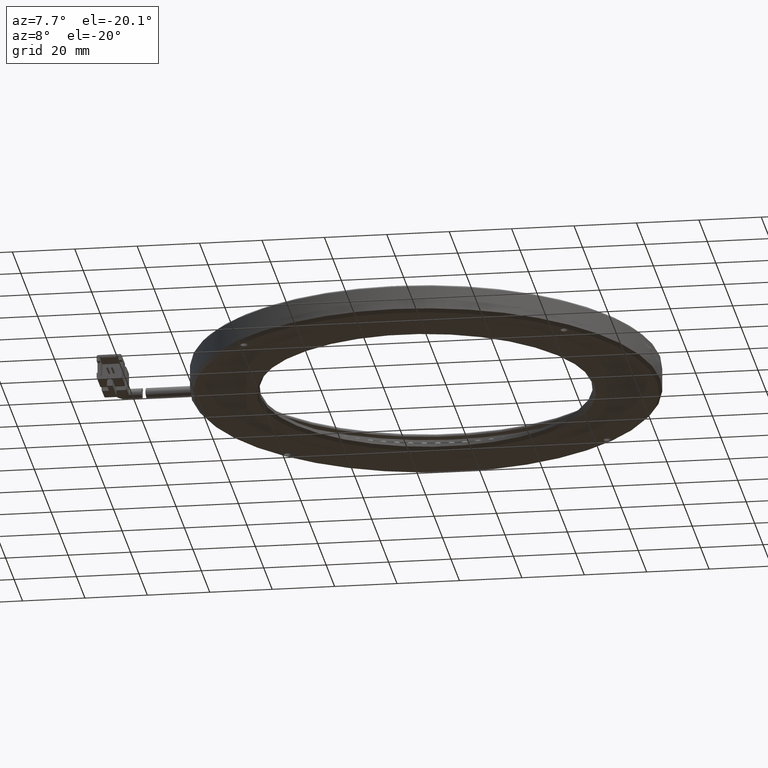
[diagram: clean part render]
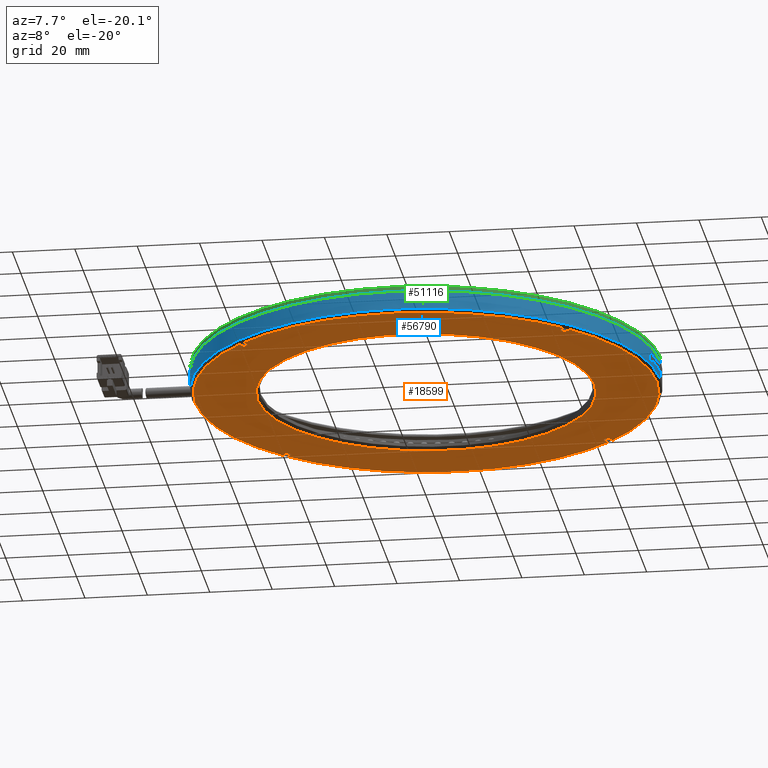
[diagram: same view with three faces highlighted in distinct colors, each labeled with its STEP entity id]
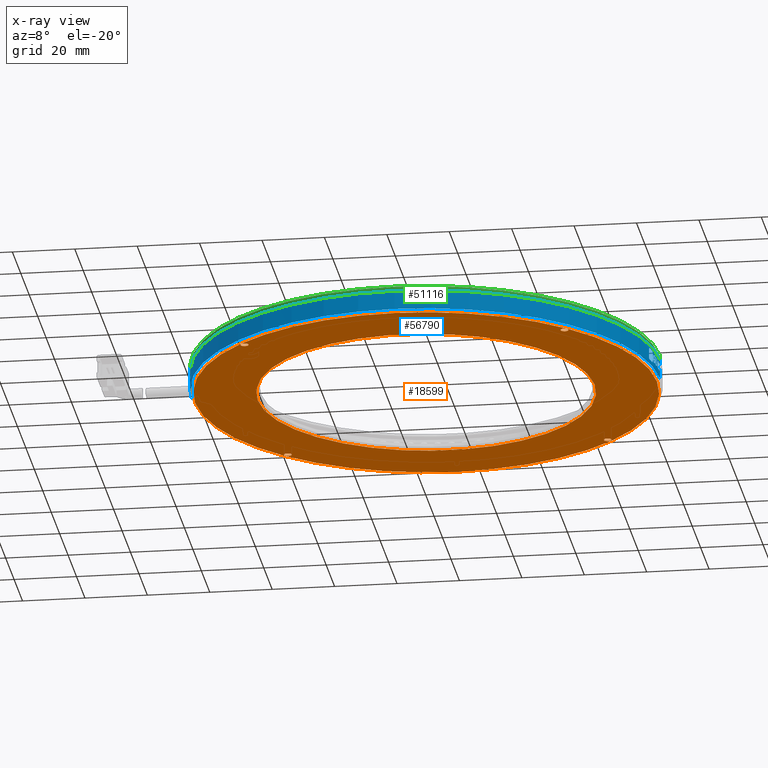
[diagram: x-ray of the same camera — body ghosted, the three highlighted faces saturated]
A machine part, auxiliary view with three faces highlighted in distinct colors.
The next image is the same camera in x-ray (body ghosted, the three faces saturated) — at least one of them is partly hidden behind the body in this view.
Their STEP definitions:

[orange] entity #18599 — the highlighted planar face has unit normal (0, 0, 1).
#1161 = AXIS2_PLACEMENT_3D ( 'NONE', #46074, #9550, #52176 ) ;
#2355 = EDGE_CURVE ( 'NONE', #24859, #32863, #60227, .T. ) ;
#2373 = CARTESIAN_POINT ( 'NONE',  ( -39.19284315886763200, 52.36118072231883500, -3.500000000000068800 ) ) ;
#2978 = DIRECTION ( 'NONE',  ( 0.0000000000000000000, 0.0000000000000000000, -1.000000000000000000 ) ) ;
#3279 = ORIENTED_EDGE ( 'NONE', *, *, #77617, .F. ) ;
#4325 = DIRECTION ( 'NONE',  ( 1.000000000000000000, 0.0000000000000000000, -0.0000000000000000000 ) ) ;
#4342 = VERTEX_POINT ( 'NONE', #5972 ) ;
#4404 = AXIS2_PLACEMENT_3D ( 'NONE', #60456, #23992, #66540 ) ;
#4442 = CIRCLE ( 'NONE', #39975, 74.00000000000004300 ) ;
#5381 = ORIENTED_EDGE ( 'NONE', *, *, #15310, .F. ) ;
#5795 = EDGE_CURVE ( 'NONE', #32863, #24859, #29074, .T. ) ;
#5972 = CARTESIAN_POINT ( 'NONE',  ( 63.33764011318265800, -50.16930254972964300, -3.500000000000068800 ) ) ;
#7058 = EDGE_LOOP ( 'NONE', ( #43446, #14644 ) ) ;
#9343 = CARTESIAN_POINT ( 'NONE',  ( -40.44284315886688600, -50.16930254973072300, -3.500000000000068800 ) ) ;
#9550 = DIRECTION ( 'NONE',  ( 0.0000000000000000000, 0.0000000000000000000, -1.000000000000000000 ) ) ;
#11096 = AXIS2_PLACEMENT_3D ( 'NONE', #56072, #19610, #62221 ) ;
#12068 = AXIS2_PLACEMENT_3D ( 'NONE', #13208, #55787, #19325 ) ;
#12640 = CARTESIAN_POINT ( 'NONE',  ( 10.82239847715735200, 1.095939086294420100, -3.500000000000063100 ) ) ;
#13208 = CARTESIAN_POINT ( 'NONE',  ( 62.08764011318194800, 52.36118072231920500, -3.500000000000068800 ) ) ;
#14644 = ORIENTED_EDGE ( 'NONE', *, *, #2355, .F. ) ;
#15310 = EDGE_CURVE ( 'NONE', #19440, #31959, #55964, .T. ) ;
#15498 = DIRECTION ( 'NONE',  ( 1.000000000000000000, 0.0000000000000000000, 0.0000000000000000000 ) ) ;
#16122 = CIRCLE ( 'NONE', #39156, 1.249999999999987100 ) ;
#18482 = EDGE_LOOP ( 'NONE', ( #5381, #63254 ) ) ;
#18599 = ADVANCED_FACE ( 'NONE', ( #45418, #31165, #75857, #77736, #59675, #43485 ), #52799, .F. ) ;
#18781 = DIRECTION ( 'NONE',  ( 1.000000000000000000, 0.0000000000000000000, 0.0000000000000000000 ) ) ;
#19325 = DIRECTION ( 'NONE',  ( 1.000000000000000000, 0.0000000000000000000, 0.0000000000000000000 ) ) ;
#19440 = VERTEX_POINT ( 'NONE', #26879 ) ;
#19610 = DIRECTION ( 'NONE',  ( 0.0000000000000000000, 0.0000000000000000000, -1.000000000000000000 ) ) ;
#19743 = DIRECTION ( 'NONE',  ( 0.0000000000000000000, 0.0000000000000000000, -1.000000000000000000 ) ) ;
#19754 = CIRCLE ( 'NONE', #60809, 53.99999999999997900 ) ;
#20462 = DIRECTION ( 'NONE',  ( 0.0000000000000000000, -0.0000000000000000000, 1.000000000000000000 ) ) ;
#22195 = EDGE_CURVE ( 'NONE', #63684, #54888, #42519, .T. ) ;
#22474 = CARTESIAN_POINT ( 'NONE',  ( 63.33764011318193400, 52.36118072231920500, -3.500000000000068800 ) ) ;
#22581 = CARTESIAN_POINT ( 'NONE',  ( 10.82239847715735200, 1.095939086294420100, -3.500000000000063100 ) ) ;
#23992 = DIRECTION ( 'NONE',  ( 0.0000000000000000000, 0.0000000000000000000, -1.000000000000000000 ) ) ;
#24003 = CARTESIAN_POINT ( 'NONE',  ( 64.82239847715733600, 1.095939086294426700, -3.500000000000063100 ) ) ;
#24859 = VERTEX_POINT ( 'NONE', #25201 ) ;
#25201 = CARTESIAN_POINT ( 'NONE',  ( 60.83764011318196200, 52.36118072231920500, -3.500000000000068800 ) ) ;
#26879 = CARTESIAN_POINT ( 'NONE',  ( -43.17760152284262900, 1.095939086294420100, -3.500000000000063100 ) ) ;
#27184 = EDGE_CURVE ( 'NONE', #65677, #63681, #77155, .T. ) ;
#27335 = DIRECTION ( 'NONE',  ( 0.0000000000000000000, 0.0000000000000000000, -1.000000000000000000 ) ) ;
#28438 = CIRCLE ( 'NONE', #4404, 1.249999999999987100 ) ;
#28675 = DIRECTION ( 'NONE',  ( -1.000000000000000000, 0.0000000000000000000, 0.0000000000000000000 ) ) ;
#29074 = CIRCLE ( 'NONE', #12068, 1.249999999999987100 ) ;
#30234 = EDGE_CURVE ( 'NONE', #63681, #65677, #28438, .T. ) ;
#31165 = FACE_BOUND ( 'NONE', #51849, .T. ) ;
#31959 = VERTEX_POINT ( 'NONE', #24003 ) ;
#32810 = CARTESIAN_POINT ( 'NONE',  ( -40.44284315886688600, -50.16930254973072300, -3.500000000000068800 ) ) ;
#32863 = VERTEX_POINT ( 'NONE', #22474 ) ;
#33415 = ORIENTED_EDGE ( 'NONE', *, *, #30234, .F. ) ;
#34665 = ORIENTED_EDGE ( 'NONE', *, *, #27184, .F. ) ;
#37109 = CARTESIAN_POINT ( 'NONE',  ( -63.17760152284268600, 1.095939086294429400, -3.500000000000063100 ) ) ;
#37817 = ORIENTED_EDGE ( 'NONE', *, *, #63203, .F. ) ;
#38938 = DIRECTION ( 'NONE',  ( 1.000000000000000000, 0.0000000000000000000, 0.0000000000000000000 ) ) ;
#39156 = AXIS2_PLACEMENT_3D ( 'NONE', #39481, #2978, #45594 ) ;
#39481 = CARTESIAN_POINT ( 'NONE',  ( 62.08764011318267300, -50.16930254972964300, -3.500000000000068800 ) ) ;
#39975 = AXIS2_PLACEMENT_3D ( 'NONE', #56926, #20462, #63075 ) ;
#40779 = AXIS2_PLACEMENT_3D ( 'NONE', #32810, #75370, #38938 ) ;
#40807 = DIRECTION ( 'NONE',  ( 0.0000000000000000000, 0.0000000000000000000, 1.000000000000000000 ) ) ;
#41963 = EDGE_CURVE ( 'NONE', #31959, #19440, #19754, .T. ) ;
#42519 = CIRCLE ( 'NONE', #40779, 1.249999999999987100 ) ;
#43446 = ORIENTED_EDGE ( 'NONE', *, *, #5795, .F. ) ;
#43485 = FACE_OUTER_BOUND ( 'NONE', #67869, .T. ) ;
#43926 = ORIENTED_EDGE ( 'NONE', *, *, #22195, .F. ) ;
#44501 = EDGE_LOOP ( 'NONE', ( #43926, #37817 ) ) ;
#44953 = CARTESIAN_POINT ( 'NONE',  ( -39.19284315886690000, -50.16930254973072300, -3.500000000000068800 ) ) ;
#45418 = FACE_BOUND ( 'NONE', #7058, .T. ) ;
#45594 = DIRECTION ( 'NONE',  ( 1.000000000000000000, 0.0000000000000000000, 0.0000000000000000000 ) ) ;
#46074 = CARTESIAN_POINT ( 'NONE',  ( 62.08764011318267300, -50.16930254972964300, -3.500000000000068800 ) ) ;
#47244 = VERTEX_POINT ( 'NONE', #37109 ) ;
#48476 = CIRCLE ( 'NONE', #52967, 1.249999999999987100 ) ;
#48769 = EDGE_CURVE ( 'NONE', #47244, #75699, #4442, .T. ) ;
#48835 = CARTESIAN_POINT ( 'NONE',  ( -41.69284315886687200, -50.16930254973072300, -3.500000000000068800 ) ) ;
#49108 = CARTESIAN_POINT ( 'NONE',  ( 60.83764011318268700, -50.16930254972964300, -3.500000000000068800 ) ) ;
#51849 = EDGE_LOOP ( 'NONE', ( #33415, #34665 ) ) ;
#51957 = DIRECTION ( 'NONE',  ( 0.0000000000000000000, 0.0000000000000000000, -1.000000000000000000 ) ) ;
#52176 = DIRECTION ( 'NONE',  ( 1.000000000000000000, 0.0000000000000000000, 0.0000000000000000000 ) ) ;
#52799 = PLANE ( 'NONE',  #77681 ) ;
#52967 = AXIS2_PLACEMENT_3D ( 'NONE', #9343, #51957, #15498 ) ;
#54820 = ORIENTED_EDGE ( 'NONE', *, *, #48769, .F. ) ;
#54888 = VERTEX_POINT ( 'NONE', #48835 ) ;
#55191 = CARTESIAN_POINT ( 'NONE',  ( -41.69284315886760300, 52.36118072231883500, -3.500000000000068800 ) ) ;
#55225 = DIRECTION ( 'NONE',  ( 0.0000000000000000000, -0.0000000000000000000, 1.000000000000000000 ) ) ;
#55787 = DIRECTION ( 'NONE',  ( 0.0000000000000000000, 0.0000000000000000000, -1.000000000000000000 ) ) ;
#55964 = CIRCLE ( 'NONE', #73726, 53.99999999999997900 ) ;
#56072 = CARTESIAN_POINT ( 'NONE',  ( 62.08764011318194800, 52.36118072231920500, -3.500000000000068800 ) ) ;
#56205 = CARTESIAN_POINT ( 'NONE',  ( 10.82239847715735200, 1.095939086294420100, -3.500000000000063100 ) ) ;
#56439 = ORIENTED_EDGE ( 'NONE', *, *, #70810, .F. ) ;
#56659 = CIRCLE ( 'NONE', #75942, 74.00000000000004300 ) ;
#56926 = CARTESIAN_POINT ( 'NONE',  ( 10.82239847715735200, 1.095939086294420100, -3.500000000000063100 ) ) ;
#58374 = CIRCLE ( 'NONE', #1161, 1.249999999999987100 ) ;
#59675 = FACE_BOUND ( 'NONE', #18482, .T. ) ;
#60227 = CIRCLE ( 'NONE', #11096, 1.249999999999987100 ) ;
#60456 = CARTESIAN_POINT ( 'NONE',  ( -40.44284315886761800, 52.36118072231883500, -3.500000000000068800 ) ) ;
#60809 = AXIS2_PLACEMENT_3D ( 'NONE', #22581, #65122, #28675 ) ;
#61049 = EDGE_LOOP ( 'NONE', ( #56439, #3279 ) ) ;
#61193 = VERTEX_POINT ( 'NONE', #49108 ) ;
#61821 = ORIENTED_EDGE ( 'NONE', *, *, #74609, .F. ) ;
#62221 = DIRECTION ( 'NONE',  ( 1.000000000000000000, 0.0000000000000000000, 0.0000000000000000000 ) ) ;
#62360 = DIRECTION ( 'NONE',  ( -1.000000000000000000, 0.0000000000000000000, 0.0000000000000000000 ) ) ;
#63075 = DIRECTION ( 'NONE',  ( 1.000000000000000000, 0.0000000000000000000, 0.0000000000000000000 ) ) ;
#63203 = EDGE_CURVE ( 'NONE', #54888, #63684, #48476, .T. ) ;
#63254 = ORIENTED_EDGE ( 'NONE', *, *, #41963, .F. ) ;
#63681 = VERTEX_POINT ( 'NONE', #2373 ) ;
#63684 = VERTEX_POINT ( 'NONE', #44953 ) ;
#63799 = CARTESIAN_POINT ( 'NONE',  ( -40.44284315886761800, 52.36118072231883500, -3.500000000000068800 ) ) ;
#65122 = DIRECTION ( 'NONE',  ( 0.0000000000000000000, 0.0000000000000000000, -1.000000000000000000 ) ) ;
#65311 = CARTESIAN_POINT ( 'NONE',  ( 84.82239847715739200, 1.095939086294420100, -3.500000000000063100 ) ) ;
#65677 = VERTEX_POINT ( 'NONE', #55191 ) ;
#66540 = DIRECTION ( 'NONE',  ( 1.000000000000000000, 0.0000000000000000000, 0.0000000000000000000 ) ) ;
#67869 = EDGE_LOOP ( 'NONE', ( #61821, #54820 ) ) ;
#69887 = DIRECTION ( 'NONE',  ( 1.000000000000000000, 0.0000000000000000000, 0.0000000000000000000 ) ) ;
#70810 = EDGE_CURVE ( 'NONE', #4342, #61193, #58374, .T. ) ;
#72356 = AXIS2_PLACEMENT_3D ( 'NONE', #63799, #27335, #69887 ) ;
#73726 = AXIS2_PLACEMENT_3D ( 'NONE', #56205, #19743, #62360 ) ;
#74609 = EDGE_CURVE ( 'NONE', #75699, #47244, #56659, .T. ) ;
#75370 = DIRECTION ( 'NONE',  ( 0.0000000000000000000, 0.0000000000000000000, -1.000000000000000000 ) ) ;
#75699 = VERTEX_POINT ( 'NONE', #65311 ) ;
#75857 = FACE_BOUND ( 'NONE', #44501, .T. ) ;
#75942 = AXIS2_PLACEMENT_3D ( 'NONE', #12640, #55225, #18781 ) ;
#77155 = CIRCLE ( 'NONE', #72356, 1.249999999999987100 ) ;
#77234 = CARTESIAN_POINT ( 'NONE',  ( 10.82239847715735200, 1.095939086294420100, -3.500000000000063100 ) ) ;
#77617 = EDGE_CURVE ( 'NONE', #61193, #4342, #16122, .T. ) ;
#77681 = AXIS2_PLACEMENT_3D ( 'NONE', #77234, #40807, #4325 ) ;
#77736 = FACE_BOUND ( 'NONE', #61049, .T. ) ;

[blue] entity #56790 — the highlighted cylindrical surface (partial cylindrical patch) has radius 75 mm, axis along (-0, -0, -1).
#124 = LINE ( 'NONE', #46437, #46755 ) ;
#234 = CARTESIAN_POINT ( 'NONE',  ( 85.77526680104405400, -1.562553528169331500, 0.4522941997876002700 ) ) ;
#270 = VERTEX_POINT ( 'NONE', #75117 ) ;
#340 = DIRECTION ( 'NONE',  ( 0.0000000000000000000, 0.0000000000000000000, 1.000000000000000000 ) ) ;
#666 = EDGE_CURVE ( 'NONE', #13433, #44068, #59825, .T. ) ;
#690 = LINE ( 'NONE', #878, #47338 ) ;
#878 = CARTESIAN_POINT ( 'NONE',  ( 85.37460077480653800, -7.087527939996651800, 3.499999999999897900 ) ) ;
#1011 = CIRCLE ( 'NONE', #32404, 75.00000000000001400 ) ;
#1137 = CARTESIAN_POINT ( 'NONE',  ( 85.18674703587593900, -8.649341830136611600, 1.907672206481323900 ) ) ;
#1184 = CARTESIAN_POINT ( 'NONE',  ( 85.23741834851031700, -8.253573184174163300, 1.539672814820076700 ) ) ;
#1657 = ORIENTED_EDGE ( 'NONE', *, *, #23213, .T. ) ;
#1763 = EDGE_LOOP ( 'NONE', ( #49741, #37566, #4177, #22982, #6377, #13156, #6529, #6190, #51292, #54046, #75348, #1657, #45240, #44798 ) ) ;
#1800 = CARTESIAN_POINT ( 'NONE',  ( -64.17760152284266400, 1.095939086294420100, 3.499999999999937400 ) ) ;
#1895 = CARTESIAN_POINT ( 'NONE',  ( 85.13545531322400000, -9.031876421992969000, 0.09105442434919838700 ) ) ;
#1995 = CARTESIAN_POINT ( 'NONE',  ( 10.82239847715735200, 1.095939086294420100, 1.881266926062279000 ) ) ;
#2182 = AXIS2_PLACEMENT_3D ( 'NONE', #12457, #55050, #18610 ) ;
#2239 = CARTESIAN_POINT ( 'NONE',  ( 10.82239847715735200, 1.095939086294420100, -0.6187330739377393500 ) ) ;
#2244 = EDGE_CURVE ( 'NONE', #48763, #4734, #57403, .T. ) ;
#3624 = CARTESIAN_POINT ( 'NONE',  ( 85.72546453779141000, -2.715975749623428500, 1.916150646992497800 ) ) ;
#3794 = CARTESIAN_POINT ( 'NONE',  ( 85.04892486094765000, -9.647560389969577000, 0.6370808795505972200 ) ) ;
#3984 = CARTESIAN_POINT ( 'NONE',  ( 85.22090243064870700, -8.383840596735215200, -0.3297299011601806400 ) ) ;
#4064 = CARTESIAN_POINT ( 'NONE',  ( 85.37460077480653800, -7.087527939996651800, 0.4394064609459808500 ) ) ;
#4140 = VECTOR ( 'NONE', #34999, 1000.000000000000000 ) ;
#4149 = DIRECTION ( 'NONE',  ( -1.000000000000000000, 0.0000000000000000000, 0.0000000000000000000 ) ) ;
#4177 = ORIENTED_EDGE ( 'NONE', *, *, #68084, .T. ) ;
#4207 = CARTESIAN_POINT ( 'NONE',  ( 85.20767832337155300, -8.486865419715409000, 1.567313437690169600 ) ) ;
#4225 = VERTEX_POINT ( 'NONE', #76767 ) ;
#4497 = CARTESIAN_POINT ( 'NONE',  ( 85.56119786874036500, -5.158211116175019500, -0.3413345464288081700 ) ) ;
#4499 = VERTEX_POINT ( 'NONE', #74899 ) ;
#4553 = CARTESIAN_POINT ( 'NONE',  ( -64.15718569520917900, -0.6539058676754254700, 0.7294260676648236500 ) ) ;
#4734 = VERTEX_POINT ( 'NONE', #65270 ) ;
#4777 = VERTEX_POINT ( 'NONE', #23488 ) ;
#4812 = CARTESIAN_POINT ( 'NONE',  ( -64.17649974751834900, 0.6374368434604580400, -1.204396376914511200 ) ) ;
#5003 = DIRECTION ( 'NONE',  ( -0.0000000000000000000, 7.322880572951427900E-015, -1.000000000000000000 ) ) ;
#5127 = CARTESIAN_POINT ( 'NONE',  ( 84.88190146822530800, -10.74457610723455400, 2.535218796744892300 ) ) ;
#5308 = CARTESIAN_POINT ( 'NONE',  ( 84.30575944966902600, -13.91060545561129800, 2.122450870051721900 ) ) ;
#5316 = ORIENTED_EDGE ( 'NONE', *, *, #76416, .T. ) ;
#5402 = CARTESIAN_POINT ( 'NONE',  ( 85.18061900130740600, -8.695015394712172000, 1.526415576407716100 ) ) ;
#5484 = AXIS2_PLACEMENT_3D ( 'NONE', #1995, #44561, #8085 ) ;
#5572 = EDGE_LOOP ( 'NONE', ( #70277, #75138, #56178, #55855, #36176, #22742, #78286, #51288, #5316, #9750 ) ) ;
#5705 = CARTESIAN_POINT ( 'NONE',  ( 84.41105198198005200, -13.38572837421528700, -1.184191727585529200 ) ) ;
#5924 = EDGE_LOOP ( 'NONE', ( #47387, #14756, #47789, #15026, #52264, #33302, #49141, #27555 ) ) ;
#6147 = CYLINDRICAL_SURFACE ( 'NONE', #58311, 75.00000000000001400 ) ;
#6171 = EDGE_CURVE ( 'NONE', #8219, #74904, #20351, .T. ) ;
#6190 = ORIENTED_EDGE ( 'NONE', *, *, #25772, .T. ) ;
#6292 = CARTESIAN_POINT ( 'NONE',  ( 85.77452472997093500, -1.583767454121697700, 0.2937435358728333100 ) ) ;
#6295 = AXIS2_PLACEMENT_3D ( 'NONE', #67931, #31531, #74072 ) ;
#6377 = ORIENTED_EDGE ( 'NONE', *, *, #22066, .T. ) ;
#6529 = ORIENTED_EDGE ( 'NONE', *, *, #58798, .T. ) ;
#6567 = DIRECTION ( 'NONE',  ( -0.0000000000000000000, -0.0000000000000000000, -1.000000000000000000 ) ) ;
#6745 = ORIENTED_EDGE ( 'NONE', *, *, #666, .T. ) ;
#6981 = EDGE_CURVE ( 'NONE', #41075, #33081, #48725, .T. ) ;
#7005 = AXIS2_PLACEMENT_3D ( 'NONE', #52676, #16250, #58833 ) ;
#7217 = CARTESIAN_POINT ( 'NONE',  ( 85.26470795163695000, -8.033968266299167400, 1.850686915253270600 ) ) ;
#7243 = CARTESIAN_POINT ( 'NONE',  ( 85.20767832337155300, -8.486865419715409000, 1.567313437690169600 ) ) ;
#7249 = DIRECTION ( 'NONE',  ( -0.0000000000000000000, 7.496356896479893600E-015, -1.000000000000000000 ) ) ;
#7445 = CARTESIAN_POINT ( 'NONE',  ( 85.27948513028692900, -7.911960065469779500, 3.499999999999862800 ) ) ;
#7502 = VERTEX_POINT ( 'NONE', #1800 ) ;
#7598 = CARTESIAN_POINT ( 'NONE',  ( 85.77552405057097900, -1.555280779369136100, 0.6138250655971354600 ) ) ;
#7970 = CARTESIAN_POINT ( 'NONE',  ( 85.16052710156996900, -8.846474300600732500, -0.1782175950982714300 ) ) ;
#8085 = DIRECTION ( 'NONE',  ( -7.727614844318015000E-014, 1.000000000000000000, 6.878178582248038600E-015 ) ) ;
#8219 = VERTEX_POINT ( 'NONE', #75502 ) ;
#8324 = DIRECTION ( 'NONE',  ( 1.000000000000000000, 0.0000000000000000000, 0.0000000000000000000 ) ) ;
#8366 = CARTESIAN_POINT ( 'NONE',  ( 85.82089311894630200, 0.6197752043794926300, 0.8412799914366088100 ) ) ;
#8503 = B_SPLINE_CURVE_WITH_KNOTS ( 'NONE', 3,
 ( #22743, #10194, #59441, #23001, #65545, #29123, #71679, #35243, #77779, #41331 ),
 .UNSPECIFIED., .F., .F.,
 ( 4, 2, 2, 2, 4 ),
 ( 9.467388459876324600E-019, 0.0003357147060549225700, 0.0006714294121098442700, 0.001007144118164765900, 0.001342858824219687500 ),
 .UNSPECIFIED. ) ;
#8734 = EDGE_CURVE ( 'NONE', #4499, #50652, #41662, .T. ) ;
#8976 = VERTEX_POINT ( 'NONE', #4064 ) ;
#9037 = B_SPLINE_CURVE_WITH_KNOTS ( 'NONE', 3,
 ( #15028, #27265, #15291, #57852, #21411, #63994, #27527, #70082, #33675, #76181 ),
 .UNSPECIFIED., .F., .F.,
 ( 4, 2, 2, 2, 4 ),
 ( 0.0000000000000000000, 0.0002371364285316164800, 0.0004742728570632329700, 0.0007114092855948495100, 0.0009485457141264659300 ),
 .UNSPECIFIED. ) ;
#9128 = LINE ( 'NONE', #49200, #23427 ) ;
#9206 = VERTEX_POINT ( 'NONE', #30453 ) ;
#9292 = CARTESIAN_POINT ( 'NONE',  ( 85.82239847715736400, 1.095939086294429400, 3.499999999999937400 ) ) ;
#9466 = LINE ( 'NONE', #25735, #38078 ) ;
#9628 = CARTESIAN_POINT ( 'NONE',  ( 85.16901157135396300, -8.783628806125200600, -0.6332506229390101300 ) ) ;
#9631 = CARTESIAN_POINT ( 'NONE',  ( 84.29269495348449900, -13.97441378550630400, 1.728539909830033600 ) ) ;
#9734 = CARTESIAN_POINT ( 'NONE',  ( 85.75436211822997700, -2.098600255447219600, 1.740395111934560200 ) ) ;
#9750 = ORIENTED_EDGE ( 'NONE', *, *, #48638, .T. ) ;
#10011 = DIRECTION ( 'NONE',  ( -0.0000000000000000000, -0.0000000000000000000, -1.000000000000000000 ) ) ;
#10019 = AXIS2_PLACEMENT_3D ( 'NONE', #27529, #70083, #33677 ) ;
#10194 = CARTESIAN_POINT ( 'NONE',  ( 85.81281787062985700, -0.1081189125871489900, 1.881266926062263900 ) ) ;
#10361 = CARTESIAN_POINT ( 'NONE',  ( 85.57562939020147000, -4.983079589536897600, 0.4626622748994564400 ) ) ;
#10521 = B_SPLINE_CURVE_WITH_KNOTS ( 'NONE', 3,
 ( #38683, #75098, #14443, #57022, #20548, #63175, #26673, #69269, #32819, #75376 ),
 .UNSPECIFIED., .F., .F.,
 ( 4, 2, 2, 2, 4 ),
 ( 0.0000000000000000000, 0.0004844807903377916000, 0.0009689615806755832000, 0.001453442371013374900, 0.001937923161351166400 ),
 .UNSPECIFIED. ) ;
#10620 = CARTESIAN_POINT ( 'NONE',  ( 85.54759765041902100, -5.318805977973588600, -0.5026407656868026000 ) ) ;
#10637 = CARTESIAN_POINT ( 'NONE',  ( 85.82207191044074100, 0.8746137582187538700, 1.532429716759988300 ) ) ;
#10669 = CARTESIAN_POINT ( 'NONE',  ( -64.15744734107639100, -0.6428014209420458400, 0.2711516273051495800 ) ) ;
#10777 = VERTEX_POINT ( 'NONE', #24479 ) ;
#10940 = CARTESIAN_POINT ( 'NONE',  ( 85.80041024745831600, -0.7200319962432193400, -0.6187330739377393500 ) ) ;
#10945 = CARTESIAN_POINT ( 'NONE',  ( -64.17760152284266400, 1.095939086294420100, -1.250000000000064400 ) ) ;
#11071 = AXIS2_PLACEMENT_3D ( 'NONE', #30440, #72981, #36522 ) ;
#11238 = VERTEX_POINT ( 'NONE', #60030 ) ;
#11263 = CARTESIAN_POINT ( 'NONE',  ( 84.85266122199919900, -10.92571628764158700, 2.544233606038094600 ) ) ;
#11390 = VERTEX_POINT ( 'NONE', #54975 ) ;
#11451 = CARTESIAN_POINT ( 'NONE',  ( 84.33844740807319300, -13.74974298291813900, 2.376114003060409100 ) ) ;
#11541 = CARTESIAN_POINT ( 'NONE',  ( 85.14791711066617100, -8.939988822093374300, 1.330703662300876600 ) ) ;
#11543 = CARTESIAN_POINT ( 'NONE',  ( 85.65737126204960800, -3.876670719877481000, 0.6138250655971199100 ) ) ;
#11869 = CARTESIAN_POINT ( 'NONE',  ( 85.69155024615795900, -3.332884627119905300, -0.4981860896549940000 ) ) ;
#11909 = EDGE_CURVE ( 'NONE', #15946, #60777, #75849, .T. ) ;
#12420 = CARTESIAN_POINT ( 'NONE',  ( 85.76859715954042000, -1.746308149533375200, -0.1626220380735349000 ) ) ;
#12457 = CARTESIAN_POINT ( 'NONE',  ( 10.82239847715735200, 1.095939086294420100, 1.532429716759989600 ) ) ;
#12490 = EDGE_CURVE ( 'NONE', #54314, #32945, #124, .T. ) ;
#12576 = CIRCLE ( 'NONE', #5484, 75.00000000000001400 ) ;
#12678 = CARTESIAN_POINT ( 'NONE',  ( 85.42453137435430200, -6.620397456124020900, -0.5796897372242303400 ) ) ;
#12769 = CARTESIAN_POINT ( 'NONE',  ( 10.82239847715735200, 1.095939086294420100, 1.881266926062277400 ) ) ;
#12819 = EDGE_CURVE ( 'NONE', #78423, #65138, #15200, .T. ) ;
#12988 = VECTOR ( 'NONE', #78649, 1000.000000000000000 ) ;
#13064 = EDGE_CURVE ( 'NONE', #37636, #67684, #56764, .T. ) ;
#13131 = CARTESIAN_POINT ( 'NONE',  ( 85.26948117695646100, -7.994285381719947700, 1.239085275425822600 ) ) ;
#13156 = ORIENTED_EDGE ( 'NONE', *, *, #77286, .T. ) ;
#13272 = CARTESIAN_POINT ( 'NONE',  ( 85.04892486094765000, -9.647560389969577000, 0.6370808795505972200 ) ) ;
#13364 = CARTESIAN_POINT ( 'NONE',  ( 85.30094370956020100, -7.733310517213373800, 1.676917082473084800 ) ) ;
#13433 = VERTEX_POINT ( 'NONE', #14867 ) ;
#13814 = FACE_BOUND ( 'NONE', #62131, .T. ) ;
#14060 = CARTESIAN_POINT ( 'NONE',  ( 85.72546453779142400, -2.715975749623410700, -0.6652447018447252800 ) ) ;
#14129 = CARTESIAN_POINT ( 'NONE',  ( 85.19931252816553500, -8.552204532308737200, -0.3183354626710875900 ) ) ;
#14443 = CARTESIAN_POINT ( 'NONE',  ( 85.65920072075071800, -3.849253282456294400, 0.9383610292177410100 ) ) ;
#14489 = CARTESIAN_POINT ( 'NONE',  ( 85.32622172360422000, -7.517166455934200200, -0.2966319229978593400 ) ) ;
#14519 = CARTESIAN_POINT ( 'NONE',  ( 85.82009169457889200, 0.5018939382658461600, 0.5177462111873288900 ) ) ;
#14562 = EDGE_CURVE ( 'NONE', #24553, #20243, #21313, .T. ) ;
#14564 = CIRCLE ( 'NONE', #10019, 75.00000000000001400 ) ;
#14654 = B_SPLINE_CURVE_WITH_KNOTS ( 'NONE', 3,
 ( #35089, #77600, #53428, #16984, #59535, #23079, #65630, #29212, #71774, #35328 ),
 .UNSPECIFIED., .F., .F.,
 ( 4, 2, 2, 2, 4 ),
 ( 0.0000000000000000000, 0.0002738867319965198600, 0.0005477734639930397200, 0.0008216601959895595300, 0.001095546927986079400 ),
 .UNSPECIFIED. ) ;
#14749 = CARTESIAN_POINT ( 'NONE',  ( 10.82239847715735200, 1.095939086294420100, -2.500000000000089700 ) ) ;
#14756 = ORIENTED_EDGE ( 'NONE', *, *, #59593, .T. ) ;
#14867 = CARTESIAN_POINT ( 'NONE',  ( 85.78632831542179800, -1.229834592241113800, -0.6187330739377398000 ) ) ;
#14935 = EDGE_CURVE ( 'NONE', #47943, #17519, #43739, .T. ) ;
#15026 = ORIENTED_EDGE ( 'NONE', *, *, #70545, .T. ) ;
#15028 = CARTESIAN_POINT ( 'NONE',  ( 85.42991686564674600, -6.566841082235678900, 0.3114994842017878600 ) ) ;
#15200 = B_SPLINE_CURVE_WITH_KNOTS ( 'NONE', 3,
 ( #61813, #19209, #61539, #25337, #67882, #31483, #74018, #37597, #1137, #43683 ),
 .UNSPECIFIED., .F., .F.,
 ( 4, 2, 2, 2, 4 ),
 ( 1.626303258728256800E-018, 0.0004820473545756452000, 0.0009640947091512887700, 0.001446142063726932500, 0.001928189418302576000 ),
 .UNSPECIFIED. ) ;
#15212 = AXIS2_PLACEMENT_3D ( 'NONE', #14749, #57319, #20854 ) ;
#15291 = CARTESIAN_POINT ( 'NONE',  ( 85.43051494153681300, -6.561034165409442000, 0.1528975038902417000 ) ) ;
#15649 = EDGE_CURVE ( 'NONE', #60766, #35959, #32012, .T. ) ;
#15814 = CARTESIAN_POINT ( 'NONE',  ( 85.12736671400639900, -9.091135858900980100, -0.5077301390030174400 ) ) ;
#15914 = CARTESIAN_POINT ( 'NONE',  ( 85.76222622608440800, -1.908201801509503700, 1.587087957759996100 ) ) ;
#15946 = VERTEX_POINT ( 'NONE', #44658 ) ;
#16024 = ORIENTED_EDGE ( 'NONE', *, *, #77525, .T. ) ;
#16147 = CARTESIAN_POINT ( 'NONE',  ( 85.49798693986417700, -5.872726724541069000, -0.3246572753277924800 ) ) ;
#16250 = DIRECTION ( 'NONE',  ( -0.0000000000000000000, -4.393728343770856900E-015, 1.000000000000000000 ) ) ;
#16285 = CARTESIAN_POINT ( 'NONE',  ( 85.24289478151831600, -8.209602805405811700, -0.2974314772622504400 ) ) ;
#16344 = DIRECTION ( 'NONE',  ( -0.0000000000000000000, -0.0000000000000000000, -1.000000000000000000 ) ) ;
#16470 = EDGE_CURVE ( 'NONE', #44068, #67314, #12576, .T. ) ;
#16488 = CIRCLE ( 'NONE', #22871, 75.00000000000001400 ) ;
#16489 = EDGE_CURVE ( 'NONE', #42909, #9206, #22369, .T. ) ;
#16544 = CARTESIAN_POINT ( 'NONE',  ( 85.57619492533254400, -4.976125246986184100, 0.3103439406803981100 ) ) ;
#16595 = CARTESIAN_POINT ( 'NONE',  ( -64.17631727402042000, 0.6430153595240090100, 2.194213056580268400 ) ) ;
#16622 = CARTESIAN_POINT ( 'NONE',  ( 84.29269495348449900, -13.97441378550632900, 3.499999999999843700 ) ) ;
#16818 = CARTESIAN_POINT ( 'NONE',  ( 85.52988957885926900, -5.521928971155794000, -0.6067715644504910700 ) ) ;
#16873 = CARTESIAN_POINT ( 'NONE',  ( -64.15921619028435400, -0.5651987151054070900, -0.06236938070198809500 ) ) ;
#16939 = VERTEX_POINT ( 'NONE', #48533 ) ;
#16984 = CARTESIAN_POINT ( 'NONE',  ( 84.95036088790762100, -10.30782768388317400, -0.8642259528715785500 ) ) ;
#17443 = CARTESIAN_POINT ( 'NONE',  ( 84.90955269275500000, -10.57030982097813500, 2.484175490232729100 ) ) ;
#17452 = EDGE_CURVE ( 'NONE', #11390, #68290, #59068, .T. ) ;
#17519 = VERTEX_POINT ( 'NONE', #41512 ) ;
#17548 = VERTEX_POINT ( 'NONE', #42306 ) ;
#17619 = CARTESIAN_POINT ( 'NONE',  ( 84.38977671524817500, -13.49340970177713600, 2.525483530925240600 ) ) ;
#17708 = CARTESIAN_POINT ( 'NONE',  ( 85.13005955917172700, -9.071260427913042400, 1.043470415415839800 ) ) ;
#18024 = CARTESIAN_POINT ( 'NONE',  ( 85.67987821670716600, -3.525799557231038800, -0.3505228873650951300 ) ) ;
#18119 = EDGE_CURVE ( 'NONE', #39053, #11390, #31141, .T. ) ;
#18288 = CARTESIAN_POINT ( 'NONE',  ( 84.35874188064201500, -13.64902759739412200, -1.124537473633572300 ) ) ;
#18428 = ORIENTED_EDGE ( 'NONE', *, *, #45515, .T. ) ;
#18568 = CARTESIAN_POINT ( 'NONE',  ( 85.75468907795128400, -2.093774502568926300, -0.5048126686404601500 ) ) ;
#18610 = DIRECTION ( 'NONE',  ( 0.0000000000000000000, -1.000000000000000000, -6.756747938929662100E-015 ) ) ;
#18823 = CARTESIAN_POINT ( 'NONE',  ( 85.39458545245203400, -6.903522228967768900, -0.3402015570328508800 ) ) ;
#18858 = DIRECTION ( 'NONE',  ( -0.0000000000000000000, -0.0000000000000000000, -1.000000000000000000 ) ) ;
#18905 = DIRECTION ( 'NONE',  ( -4.423082270813930100E-013, 1.000000000000000000, 6.664229353544232900E-015 ) ) ;
#19209 = CARTESIAN_POINT ( 'NONE',  ( 85.04975875631591000, -9.641799031048190500, 0.7999136528217759600 ) ) ;
#19256 = CARTESIAN_POINT ( 'NONE',  ( 85.27158828524589800, -7.976995219607230700, 1.183592507457587000 ) ) ;
#19472 = CARTESIAN_POINT ( 'NONE',  ( 85.78632831542179800, -1.229834592241113800, 3.499999999999921000 ) ) ;
#19487 = CARTESIAN_POINT ( 'NONE',  ( 85.32595410380287100, -7.519429498712944400, 1.400999174912654500 ) ) ;
#19571 = CIRCLE ( 'NONE', #6295, 75.00000000000001400 ) ;
#20041 = EDGE_CURVE ( 'NONE', #53648, #11238, #28460, .T. ) ;
#20243 = VERTEX_POINT ( 'NONE', #11543 ) ;
#20351 = LINE ( 'NONE', #16622, #4140 ) ;
#20406 = EDGE_CURVE ( 'NONE', #33081, #57707, #1011, .T. ) ;
#20548 = CARTESIAN_POINT ( 'NONE',  ( 85.66942324089495700, -3.692962517496797500, 1.403750059769482700 ) ) ;
#20588 = CARTESIAN_POINT ( 'NONE',  ( 85.29904359394902300, -7.749309263446059900, -0.5091986706108977400 ) ) ;
#20618 = CARTESIAN_POINT ( 'NONE',  ( 85.81747569817115100, 0.2295187789606885400, 0.3124709381981453600 ) ) ;
#20854 = DIRECTION ( 'NONE',  ( 1.000000000000000000, 0.0000000000000000000, 0.0000000000000000000 ) ) ;
#21313 = B_SPLINE_CURVE_WITH_KNOTS ( 'NONE', 3,
 ( #42218, #36127, #72556, #48355, #11869, #54459, #18024, #60605, #24133, #66680, #30286, #72831 ),
 .UNSPECIFIED., .F., .F.,
 ( 4, 2, 2, 2, 2, 4 ),
 ( 0.0000000000000000000, 0.0004812107470553964800, 0.0007218161205830940900, 0.0009624214941107916500, 0.001443632241166188800, 0.001924842988221585900 ),
 .UNSPECIFIED. ) ;
#21411 = CARTESIAN_POINT ( 'NONE',  ( 85.43683457279239200, -6.499328964407181000, -0.07883554273052535700 ) ) ;
#21926 = CARTESIAN_POINT ( 'NONE',  ( 85.09960397285972500, -9.291540224551441800, -0.3586317259976649100 ) ) ;
#21966 = CARTESIAN_POINT ( 'NONE',  ( -64.17760152284266400, 1.095939086294420100, 3.499999999999937400 ) ) ;
#22028 = CARTESIAN_POINT ( 'NONE',  ( 85.77093401188857100, -1.682404599520479900, 1.248857339272748400 ) ) ;
#22066 = EDGE_CURVE ( 'NONE', #270, #33453, #64662, .T. ) ;
#22217 = LINE ( 'NONE', #21966, #38389 ) ;
#22262 = CARTESIAN_POINT ( 'NONE',  ( 85.51813702008145400, -5.653050125548580800, -0.2207362083010727900 ) ) ;
#22369 = B_SPLINE_CURVE_WITH_KNOTS ( 'NONE', 3,
 ( #44835, #50952, #14489, #57063, #20588, #63215, #26720, #69304, #32865, #75411 ),
 .UNSPECIFIED., .F., .F.,
 ( 4, 2, 2, 2, 4 ),
 ( 0.0000000000000000000, 0.0003139902522708175700, 0.0006279805045416351300, 0.0009419707568124526400, 0.001255961009083270300 ),
 .UNSPECIFIED. ) ;
#22414 = CARTESIAN_POINT ( 'NONE',  ( 85.26185691283082200, -8.056625508758674700, -0.2035324040654171200 ) ) ;
#22716 = CARTESIAN_POINT ( 'NONE',  ( -64.17366216220652600, 0.3199776595784417600, 2.072748805248740800 ) ) ;
#22742 = ORIENTED_EDGE ( 'NONE', *, *, #70200, .T. ) ;
#22743 = CARTESIAN_POINT ( 'NONE',  ( 85.81083458653341700, -0.2210460578981627300, 1.881266926062269900 ) ) ;
#22871 = AXIS2_PLACEMENT_3D ( 'NONE', #2239, #44827, #8324 ) ;
#22914 = CARTESIAN_POINT ( 'NONE',  ( 85.49609889360226600, -5.894180615965489700, -0.6731427493094680500 ) ) ;
#22960 = CARTESIAN_POINT ( 'NONE',  ( -64.16224778660426900, -0.4228872943037863000, -0.3767369343119540400 ) ) ;
#22966 = LINE ( 'NONE', #42731, #35346 ) ;
#22982 = ORIENTED_EDGE ( 'NONE', *, *, #34675, .T. ) ;
#23001 = CARTESIAN_POINT ( 'NONE',  ( 85.81737844848625200, 0.2213802100546778400, 1.813171652358956300 ) ) ;
#23079 = CARTESIAN_POINT ( 'NONE',  ( 84.92311450070766900, -10.48370786846272700, -1.078264862997523300 ) ) ;
#23213 = EDGE_CURVE ( 'NONE', #62898, #10777, #53531, .T. ) ;
#23323 = B_SPLINE_CURVE_WITH_KNOTS ( 'NONE', 3,
 ( #35798, #78319, #5402, #48015, #11541, #54144, #17708, #60255, #23800, #66353 ),
 .UNSPECIFIED., .F., .F.,
 ( 4, 2, 2, 2, 4 ),
 ( 0.0000000000000000000, 0.0003154149640529018800, 0.0006308299281058037600, 0.0009462448921587055800, 0.001261659856211607500 ),
 .UNSPECIFIED. ) ;
#23328 = EDGE_CURVE ( 'NONE', #4225, #50622, #46334, .T. ) ;
#23427 = VECTOR ( 'NONE', #18858, 1000.000000000000000 ) ;
#23458 = CARTESIAN_POINT ( 'NONE',  ( 84.29269495348449900, -13.97441378550630400, 1.728539909830033600 ) ) ;
#23488 = CARTESIAN_POINT ( 'NONE',  ( 85.12242608258272000, -9.126873532208833200, 0.6254529725738690000 ) ) ;
#23529 = CARTESIAN_POINT ( 'NONE',  ( 84.94316070689144700, -10.35469463680847800, 2.310686527866162800 ) ) ;
#23712 = CARTESIAN_POINT ( 'NONE',  ( 84.42886333274390200, -13.29462488678543500, 2.544233606038080800 ) ) ;
#23775 = CARTESIAN_POINT ( 'NONE',  ( 85.81083458653341700, -0.2210460578981627300, 1.881266926062269900 ) ) ;
#23800 = CARTESIAN_POINT ( 'NONE',  ( 85.12296165571403600, -9.122980953921047100, 0.7311104013008034000 ) ) ;
#23923 = CARTESIAN_POINT ( 'NONE',  ( 85.42991686564674600, -6.566841082235686000, 3.499999999999903200 ) ) ;
#24060 = CARTESIAN_POINT ( 'NONE',  ( 85.19220925897089100, -8.606186674447533500, 0.8231273911785044200 ) ) ;
#24124 = ORIENTED_EDGE ( 'NONE', *, *, #16470, .T. ) ;
#24133 = CARTESIAN_POINT ( 'NONE',  ( 85.66534271860786000, -3.755434787991508200, -0.01854273503208337500 ) ) ;
#24395 = CARTESIAN_POINT ( 'NONE',  ( 84.31510130916294100, -13.86491446348399100, -0.9517729592684464100 ) ) ;
#24479 = CARTESIAN_POINT ( 'NONE',  ( 85.33692191335711600, -7.423790784777601500, 0.8231273911785130800 ) ) ;
#24553 = VERTEX_POINT ( 'NONE', #14060 ) ;
#24691 = CARTESIAN_POINT ( 'NONE',  ( 85.73372002254853900, -2.553757770800642000, -0.6550159446794712200 ) ) ;
#24835 = EDGE_CURVE ( 'NONE', #68290, #8976, #40692, .T. ) ;
#24939 = CARTESIAN_POINT ( 'NONE',  ( 85.38322206209760200, -7.008665935357462300, -0.1439643141347583800 ) ) ;
#25093 = CARTESIAN_POINT ( 'NONE',  ( 85.20767832337155300, -8.486865419715409000, 1.916150646992458100 ) ) ;
#25106 = CARTESIAN_POINT ( 'NONE',  ( 85.27948513028692900, -7.911960065469779500, 0.05568553071344170500 ) ) ;
#25138 = ORIENTED_EDGE ( 'NONE', *, *, #76947, .F. ) ;
#25184 = AXIS2_PLACEMENT_3D ( 'NONE', #12769, #55364, #18905 ) ;
#25193 = EDGE_CURVE ( 'NONE', #64268, #50652, #22217, .T. ) ;
#25337 = CARTESIAN_POINT ( 'NONE',  ( 85.06542124964600800, -9.533058369566438400, 1.269462863563843000 ) ) ;
#25458 = DIRECTION ( 'NONE',  ( -0.0000000000000000000, -7.335628832662074100E-015, 1.000000000000000000 ) ) ;
#25610 = CARTESIAN_POINT ( 'NONE',  ( 85.33567663962094200, -7.434675046540792000, 1.183592507457587000 ) ) ;
#25735 = CARTESIAN_POINT ( 'NONE',  ( 85.82239847715736400, 1.095939086294429400, 3.499999999999937400 ) ) ;
#25772 = EDGE_CURVE ( 'NONE', #41569, #41075, #45257, .T. ) ;
#25835 = DIRECTION ( 'NONE',  ( 0.0000000000000000000, 0.0000000000000000000, 1.000000000000000000 ) ) ;
#26673 = CARTESIAN_POINT ( 'NONE',  ( 85.69074370972671800, -3.348618225957016700, 1.758422945781550100 ) ) ;
#26720 = CARTESIAN_POINT ( 'NONE',  ( 85.26398354726256900, -8.039770225564396400, -0.6240117307573898000 ) ) ;
#26756 = CARTESIAN_POINT ( 'NONE',  ( 85.81284302531462100, -0.1066866181680018900, 0.2502727656581910100 ) ) ;
#27265 = CARTESIAN_POINT ( 'NONE',  ( 85.42991686564676000, -6.566841082235678000, 0.2318314397788244500 ) ) ;
#27419 = B_SPLINE_CURVE_WITH_KNOTS ( 'NONE', 3,
 ( #73101, #234, #6292, #48896, #12420, #55007, #18568, #61138, #24691, #67228 ),
 .UNSPECIFIED., .F., .F.,
 ( 4, 2, 2, 2, 4 ),
 ( 0.0000000000000000000, 0.0004784595827175905200, 0.0009569191654351808300, 0.001435378748152771000, 0.001913838330870361200 ),
 .UNSPECIFIED. ) ;
#27527 = CARTESIAN_POINT ( 'NONE',  ( 85.45271820299790000, -6.341858205104668600, -0.2583123487088779800 ) ) ;
#27529 = CARTESIAN_POINT ( 'NONE',  ( 10.82239847715735200, 1.095939086294420100, 3.499999999999937400 ) ) ;
#27555 = ORIENTED_EDGE ( 'NONE', *, *, #44205, .T. ) ;
#27713 = CARTESIAN_POINT ( 'NONE',  ( 85.48156069546963900, -6.046154224474706000, -0.6652447018447496000 ) ) ;
#27759 = CARTESIAN_POINT ( 'NONE',  ( 84.42886333274390200, -13.29462488678540700, -1.184191727585531600 ) ) ;
#27866 = CARTESIAN_POINT ( 'NONE',  ( 85.74124534837862700, -2.395341320583212100, 1.875817294594089600 ) ) ;
#28045 = CARTESIAN_POINT ( 'NONE',  ( 85.07778823130830400, -9.446288222865511800, -0.1631303063311613200 ) ) ;
#28071 = DIRECTION ( 'NONE',  ( -0.0000000000000000000, -6.663212063528497600E-015, 1.000000000000000000 ) ) ;
#28144 = CARTESIAN_POINT ( 'NONE',  ( 85.77516856345191300, -1.565330821246206700, 0.7766759441730783900 ) ) ;
#28343 = DIRECTION ( 'NONE',  ( -0.0000000000000000000, -0.0000000000000000000, -1.000000000000000000 ) ) ;
#28372 = CARTESIAN_POINT ( 'NONE',  ( 85.52885474092244100, -5.533208846143666400, -0.009063415563341092500 ) ) ;
#28460 = B_SPLINE_CURVE_WITH_KNOTS ( 'NONE', 3,
 ( #33989, #76766, #16147, #58710, #22262, #64820, #28372, #70940, #34514, #77017 ),
 .UNSPECIFIED., .F., .F.,
 ( 4, 2, 2, 2, 4 ),
 ( 0.0000000000000000000, 0.0002419689999867363300, 0.0004839379999734726600, 0.0007259069999602089400, 0.0009678759999469453300 ),
 .UNSPECIFIED. ) ;
#28504 = CARTESIAN_POINT ( 'NONE',  ( 85.27459270946995700, -7.952365034927881400, -0.05689357070257763900 ) ) ;
#28667 = AXIS2_PLACEMENT_3D ( 'NONE', #61934, #25458, #68011 ) ;
#28814 = CARTESIAN_POINT ( 'NONE',  ( -64.17007602798992100, 0.02925516272843195100, 1.892034946519495700 ) ) ;
#28853 = DIRECTION ( 'NONE',  ( -0.0000000000000000000, 6.952995436024276700E-015, -1.000000000000000000 ) ) ;
#29088 = CARTESIAN_POINT ( 'NONE',  ( -64.16603006302712200, -0.2240024548147191400, -0.6548122669175645600 ) ) ;
#29123 = CARTESIAN_POINT ( 'NONE',  ( 85.82001224449379600, 0.4920033262684001500, 1.610664512973444300 ) ) ;
#29212 = CARTESIAN_POINT ( 'NONE',  ( 84.88234829232969500, -10.74178283259876400, -1.174770339397424700 ) ) ;
#29657 = CARTESIAN_POINT ( 'NONE',  ( 84.95835984805251000, -10.25571107616184100, 2.050996971130215800 ) ) ;
#30019 = FACE_OUTER_BOUND ( 'NONE', #56615, .T. ) ;
#30068 = DIRECTION ( 'NONE',  ( -0.0000000000000000000, -0.0000000000000000000, -1.000000000000000000 ) ) ;
#30286 = CARTESIAN_POINT ( 'NONE',  ( 85.65785339892077800, -3.869414831915349000, 0.4517633133040421200 ) ) ;
#30440 = CARTESIAN_POINT ( 'NONE',  ( 10.82239847715735200, 1.095939086294420100, 1.183592507457641700 ) ) ;
#30453 = CARTESIAN_POINT ( 'NONE',  ( 85.21186890710215800, -8.454280238536300700, -0.6652447018447669200 ) ) ;
#30541 = CARTESIAN_POINT ( 'NONE',  ( 84.29471239824799500, -13.96460011489729400, -0.6916881581049977300 ) ) ;
#30974 = LINE ( 'NONE', #42870, #47136 ) ;
#31095 = CARTESIAN_POINT ( 'NONE',  ( 85.37507307409556700, -7.083296352040181700, 0.1429601722950245600 ) ) ;
#31141 = LINE ( 'NONE', #72551, #12988 ) ;
#31233 = DIRECTION ( 'NONE',  ( 0.0000000000000000000, 0.0000000000000000000, 1.000000000000000000 ) ) ;
#31395 = ORIENTED_EDGE ( 'NONE', *, *, #65726, .T. ) ;
#31483 = CARTESIAN_POINT ( 'NONE',  ( 85.10550895487548900, -9.249636770730612400, 1.669133492925692500 ) ) ;
#31525 = CARTESIAN_POINT ( 'NONE',  ( 85.26674209899266500, -8.016724362916459500, 1.292006070775906700 ) ) ;
#31531 = DIRECTION ( 'NONE',  ( -0.0000000000000000000, -7.575289211764191400E-015, 1.000000000000000000 ) ) ;
#31888 = DIRECTION ( 'NONE',  ( -0.0000000000000000000, -0.0000000000000000000, -1.000000000000000000 ) ) ;
#31922 = CARTESIAN_POINT ( 'NONE',  ( 85.19220925897089100, -8.606186674447533500, 0.4742901818761604500 ) ) ;
#31945 = FACE_BOUND ( 'NONE', #43167, .T. ) ;
#32012 = CIRCLE ( 'NONE', #48804, 75.00000000000001400 ) ;
#32256 = CARTESIAN_POINT ( 'NONE',  ( 85.12297169955053300, -9.122907954702480300, 0.5163563527657208900 ) ) ;
#32378 = CARTESIAN_POINT ( 'NONE',  ( -64.17760152284266400, 1.095939086294420100, -1.250000000000064400 ) ) ;
#32404 = AXIS2_PLACEMENT_3D ( 'NONE', #43745, #7249, #49871 ) ;
#32464 = ORIENTED_EDGE ( 'NONE', *, *, #54091, .F. ) ;
#32521 = B_SPLINE_CURVE_WITH_KNOTS ( 'NONE', 3,
 ( #34717, #46934, #53051, #16595, #59167, #22716, #65264, #28814, #71393, #34973, #77480, #41029, #4553, #47209, #10669, #53303, #16873, #59412, #22960, #65510, #29088, #71648, #35214, #77739, #41305, #4812, #47453, #10945 ),
 .UNSPECIFIED., .F., .F.,
 ( 4, 2, 2, 2, 2, 2, 2, 2, 2, 2, 2, 2, 2, 4 ),
 ( 0.0000000000000000000, 0.0003418973432272370200, 0.0006837946864544740400, 0.001025692029681711000, 0.001367589372908948100, 0.002051384059363421600, 0.002735178745817894900, 0.003077076089045131700, 0.003418973432272368600, 0.003760870775499605900, 0.004102768118726843200, 0.004444665461954079600, 0.004786562805181316900, 0.005470357491635789700 ),
 .UNSPECIFIED. ) ;
#32553 = VECTOR ( 'NONE', #25835, 1000.000000000000000 ) ;
#32819 = CARTESIAN_POINT ( 'NONE',  ( 85.71707062695986700, -2.880913762298332500, 1.909204536019709600 ) ) ;
#32865 = CARTESIAN_POINT ( 'NONE',  ( 85.22529159919672300, -8.349726937434178700, -0.6652447018447676900 ) ) ;
#32945 = VERTEX_POINT ( 'NONE', #10940 ) ;
#33081 = VERTEX_POINT ( 'NONE', #54330 ) ;
#33302 = ORIENTED_EDGE ( 'NONE', *, *, #47939, .T. ) ;
#33453 = VERTEX_POINT ( 'NONE', #4207 ) ;
#33675 = CARTESIAN_POINT ( 'NONE',  ( 85.47498599887582300, -6.114995638987282200, -0.3280353995191343000 ) ) ;
#33677 = DIRECTION ( 'NONE',  ( -1.000000000000000000, 0.0000000000000000000, 0.0000000000000000000 ) ) ;
#33923 = CARTESIAN_POINT ( 'NONE',  ( 85.19055396809086700, -8.620308574783445400, -0.6585171868089956200 ) ) ;
#33989 = CARTESIAN_POINT ( 'NONE',  ( 85.48259465488460800, -6.035337566821808300, -0.3280353995191321300 ) ) ;
#34178 = CARTESIAN_POINT ( 'NONE',  ( 85.06275729370678100, -9.551580450353352300, 0.06246326196282914200 ) ) ;
#34423 = EDGE_CURVE ( 'NONE', #7502, #75365, #14564, .T. ) ;
#34514 = CARTESIAN_POINT ( 'NONE',  ( 85.53169343704439600, -5.501124929513299100, 0.2304433328411831800 ) ) ;
#34645 = CARTESIAN_POINT ( 'NONE',  ( 85.27948513028692900, -7.911960065469779500, 0.05568553071344170500 ) ) ;
#34675 = EDGE_CURVE ( 'NONE', #37595, #270, #49707, .T. ) ;
#34717 = CARTESIAN_POINT ( 'NONE',  ( -64.17760152284266400, 1.095939086294413800, 2.249999999999931600 ) ) ;
#34921 = CARTESIAN_POINT ( 'NONE',  ( 85.57179529669906500, -5.030065722768961600, -0.06460596567063671400 ) ) ;
#34973 = CARTESIAN_POINT ( 'NONE',  ( -64.16472828938128700, -0.3029481983217960400, 1.575980794623568400 ) ) ;
#34999 = DIRECTION ( 'NONE',  ( 0.0000000000000000000, 0.0000000000000000000, 1.000000000000000000 ) ) ;
#35089 = CARTESIAN_POINT ( 'NONE',  ( 84.95984298114734700, -10.24598854607058800, -0.5044299926477303600 ) ) ;
#35214 = CARTESIAN_POINT ( 'NONE',  ( -64.17005402205187200, 0.02774340336413684900, -0.8908453489244831900 ) ) ;
#35243 = CARTESIAN_POINT ( 'NONE',  ( 85.82087323973534900, 0.6164804083204507000, 1.292438241572600600 ) ) ;
#35270 = ORIENTED_EDGE ( 'NONE', *, *, #52383, .T. ) ;
#35328 = CARTESIAN_POINT ( 'NONE',  ( 84.85266122199919900, -10.92571628764155800, -1.184191727585514300 ) ) ;
#35346 = VECTOR ( 'NONE', #36897, 1000.000000000000000 ) ;
#35476 = CARTESIAN_POINT ( 'NONE',  ( -64.17760152284266400, 1.095939086294420100, -2.500000000000089700 ) ) ;
#35665 = CARTESIAN_POINT ( 'NONE',  ( 85.53146008865044800, -5.503766447297857100, 1.881266926062233200 ) ) ;
#35791 = CARTESIAN_POINT ( 'NONE',  ( 84.95984298114734700, -10.24598854607059900, 1.864478666339576500 ) ) ;
#35798 = CARTESIAN_POINT ( 'NONE',  ( 85.20767832337155300, -8.486865419715409000, 1.567313437690169600 ) ) ;
#35959 = VERTEX_POINT ( 'NONE', #27759 ) ;
#35985 = AXIS2_PLACEMENT_3D ( 'NONE', #64524, #28071, #70631 ) ;
#36127 = CARTESIAN_POINT ( 'NONE',  ( 85.71723957255363800, -2.877594028380342300, -0.6550537591460939800 ) ) ;
#36176 = ORIENTED_EDGE ( 'NONE', *, *, #14935, .T. ) ;
#36522 = DIRECTION ( 'NONE',  ( 1.465494392505206400E-013, -1.000000000000000000, -6.398238420561122200E-015 ) ) ;
#36631 = CARTESIAN_POINT ( 'NONE',  ( 84.29269495348449900, -13.97441378550632900, -0.5044299926477581200 ) ) ;
#36897 = DIRECTION ( 'NONE',  ( -0.0000000000000000000, -0.0000000000000000000, -1.000000000000000000 ) ) ;
#37197 = CARTESIAN_POINT ( 'NONE',  ( 85.37460077480653800, -7.087527939996651800, 0.4394064609459808500 ) ) ;
#37566 = ORIENTED_EDGE ( 'NONE', *, *, #12819, .T. ) ;
#37595 = VERTEX_POINT ( 'NONE', #50280 ) ;
#37597 = CARTESIAN_POINT ( 'NONE',  ( 85.16538641118863500, -8.810782149617105900, 1.880235148847993800 ) ) ;
#37636 = VERTEX_POINT ( 'NONE', #56910 ) ;
#37651 = CARTESIAN_POINT ( 'NONE',  ( 85.25455097473374600, -8.115836807359819700, 1.434460720313274400 ) ) ;
#37692 = ORIENTED_EDGE ( 'NONE', *, *, #50387, .T. ) ;
#38078 = VECTOR ( 'NONE', #31888, 1000.000000000000000 ) ;
#38354 = CARTESIAN_POINT ( 'NONE',  ( 85.13066680191606400, -9.066825319815260200, 0.1962860136212994700 ) ) ;
#38389 = VECTOR ( 'NONE', #28343, 1000.000000000000000 ) ;
#38610 = DIRECTION ( 'NONE',  ( 0.0000000000000000000, 0.0000000000000000000, 1.000000000000000000 ) ) ;
#38683 = CARTESIAN_POINT ( 'NONE',  ( 85.65737126204960800, -3.876670719877481000, 0.6138250655971199100 ) ) ;
#38761 = CARTESIAN_POINT ( 'NONE',  ( 85.82092045126417200, 0.6250869869910777900, 1.067313437690228000 ) ) ;
#38897 = CARTESIAN_POINT ( 'NONE',  ( 85.82239847715736400, 1.095939086294429400, 3.499999999999937400 ) ) ;
#39053 = VERTEX_POINT ( 'NONE', #40965 ) ;
#39088 = VERTEX_POINT ( 'NONE', #35665 ) ;
#39550 = VERTEX_POINT ( 'NONE', #46255 ) ;
#40280 = CARTESIAN_POINT ( 'NONE',  ( 85.04975846481184500, -9.641801045041521700, 0.4696542889658487700 ) ) ;
#40485 = CARTESIAN_POINT ( 'NONE',  ( 85.22837841027974500, -8.324970120219424200, -0.3253341393007962400 ) ) ;
#40640 = B_SPLINE_CURVE_WITH_KNOTS ( 'NONE', 3,
 ( #23458, #72136, #41795, #5308, #47926, #11451, #54063, #17619, #60170, #23712 ),
 .UNSPECIFIED., .F., .F.,
 ( 4, 2, 2, 2, 4 ),
 ( 0.0000000000000000000, 0.0002993955819688088000, 0.0005987911639376169500, 0.0008981867459064249900, 0.001197582327875233000 ),
 .UNSPECIFIED. ) ;
#40692 = B_SPLINE_CURVE_WITH_KNOTS ( 'NONE', 3,
 ( #43019, #42774, #49159, #12678, #55259, #18823, #61407, #24939, #67479, #31095, #73617, #37197 ),
 .UNSPECIFIED., .F., .F.,
 ( 4, 2, 2, 2, 2, 4 ),
 ( 0.0000000000000000000, 0.0004375022641152291900, 0.0008750045282304583700, 0.001093755660288073000, 0.001312506792345687500, 0.001750009056460916700 ),
 .UNSPECIFIED. ) ;
#40770 = CARTESIAN_POINT ( 'NONE',  ( 84.85266122199919900, -10.92571628764158700, 2.544233606038094600 ) ) ;
#40808 = EDGE_CURVE ( 'NONE', #62267, #53648, #9037, .T. ) ;
#40965 = CARTESIAN_POINT ( 'NONE',  ( 85.57562939020147000, -4.983079589536897600, 1.881266926062236800 ) ) ;
#40982 = CARTESIAN_POINT ( 'NONE',  ( 85.56465721234126000, -5.116611009459464100, -0.2757891982449489100 ) ) ;
#41029 = CARTESIAN_POINT ( 'NONE',  ( -64.15829563789961300, -0.6079193618441489600, 0.9596907305075449400 ) ) ;
#41075 = VERTEX_POINT ( 'NONE', #25106 ) ;
#41206 = VECTOR ( 'NONE', #6567, 1000.000000000000000 ) ;
#41305 = CARTESIAN_POINT ( 'NONE',  ( -64.17365622032252800, 0.3193957081805960400, -1.072467236856937700 ) ) ;
#41331 = CARTESIAN_POINT ( 'NONE',  ( 85.82092045126417200, 0.6250869869910777900, 1.067313437690228000 ) ) ;
#41500 = CARTESIAN_POINT ( 'NONE',  ( 10.82239847715735200, 1.095939086294420100, -1.184191727585426100 ) ) ;
#41512 = CARTESIAN_POINT ( 'NONE',  ( 85.42991686564674600, -6.566841082235686000, 1.881266926062224600 ) ) ;
#41569 = VERTEX_POINT ( 'NONE', #67036 ) ;
#41662 = CIRCLE ( 'NONE', #15212, 75.00000000000001400 ) ;
#41795 = CARTESIAN_POINT ( 'NONE',  ( 84.29501102964033500, -13.96314201506691400, 1.928587409456850500 ) ) ;
#42218 = CARTESIAN_POINT ( 'NONE',  ( 85.72546453779142400, -2.715975749623410700, -0.6652447018447252800 ) ) ;
#42306 = CARTESIAN_POINT ( 'NONE',  ( -64.17760152284266400, 1.095939086294413800, 2.249999999999931600 ) ) ;
#42473 = CARTESIAN_POINT ( 'NONE',  ( 84.42886333274390200, -13.29462488678540700, -1.184191727585531600 ) ) ;
#42657 = ORIENTED_EDGE ( 'NONE', *, *, #42735, .T. ) ;
#42690 = VERTEX_POINT ( 'NONE', #72570 ) ;
#42731 = CARTESIAN_POINT ( 'NONE',  ( 85.33692191335711600, -7.423790784777601500, 3.499999999999873400 ) ) ;
#42735 = EDGE_CURVE ( 'NONE', #60777, #24553, #27419, .T. ) ;
#42774 = CARTESIAN_POINT ( 'NONE',  ( 85.46748245226579900, -6.193319739873200700, -0.6700251491815810700 ) ) ;
#42793 = CARTESIAN_POINT ( 'NONE',  ( 85.20767832337155300, -8.486865419715409000, 1.916150646992458100 ) ) ;
#42870 = CARTESIAN_POINT ( 'NONE',  ( 85.82207191044074100, 0.8746137582187538700, 3.499999999999936100 ) ) ;
#42909 = VERTEX_POINT ( 'NONE', #57094 ) ;
#43019 = CARTESIAN_POINT ( 'NONE',  ( 85.48156069546963900, -6.046154224474706000, -0.6652447018447496000 ) ) ;
#43167 = EDGE_LOOP ( 'NONE', ( #24124, #43719, #44482, #18428, #54785, #37692, #6745 ) ) ;
#43408 = ORIENTED_EDGE ( 'NONE', *, *, #14562, .T. ) ;
#43683 = CARTESIAN_POINT ( 'NONE',  ( 85.20767832337155300, -8.486865419715409000, 1.916150646992458100 ) ) ;
#43704 = CARTESIAN_POINT ( 'NONE',  ( 85.23699226966736800, -8.257182256704906500, 1.905356559001218500 ) ) ;
#43719 = ORIENTED_EDGE ( 'NONE', *, *, #64486, .T. ) ;
#43736 = CARTESIAN_POINT ( 'NONE',  ( 85.22257920887541600, -8.371199224347689600, 1.567313437690172100 ) ) ;
#43739 = CIRCLE ( 'NONE', #35985, 75.00000000000001400 ) ;
#43745 = CARTESIAN_POINT ( 'NONE',  ( 10.82239847715735200, 1.095939086294420100, 0.4742901818762332900 ) ) ;
#44068 = VERTEX_POINT ( 'NONE', #57974 ) ;
#44167 = LINE ( 'NONE', #64815, #74639 ) ;
#44205 = EDGE_CURVE ( 'NONE', #4734, #60766, #14654, .T. ) ;
#44353 = AXIS2_PLACEMENT_3D ( 'NONE', #65292, #28853, #71424 ) ;
#44384 = ORIENTED_EDGE ( 'NONE', *, *, #59236, .T. ) ;
#44473 = CARTESIAN_POINT ( 'NONE',  ( 85.15032221097416700, -8.922185324506813200, -0.09704321594407540300 ) ) ;
#44482 = ORIENTED_EDGE ( 'NONE', *, *, #23328, .T. ) ;
#44561 = DIRECTION ( 'NONE',  ( -0.0000000000000000000, -6.878442475981133300E-015, 1.000000000000000000 ) ) ;
#44658 = CARTESIAN_POINT ( 'NONE',  ( 85.72546453779141000, -2.715975749623428500, 1.916150646992497800 ) ) ;
#44798 = ORIENTED_EDGE ( 'NONE', *, *, #16489, .T. ) ;
#44827 = DIRECTION ( 'NONE',  ( -0.0000000000000000000, -0.0000000000000000000, -1.000000000000000000 ) ) ;
#44835 = CARTESIAN_POINT ( 'NONE',  ( 85.33692191335711600, -7.423790784777581000, -0.1071051669609968100 ) ) ;
#44859 = CARTESIAN_POINT ( 'NONE',  ( 85.82093888729608000, 0.6280235251249307600, 0.9534915652330515600 ) ) ;
#45240 = ORIENTED_EDGE ( 'NONE', *, *, #58107, .T. ) ;
#45257 = B_SPLINE_CURVE_WITH_KNOTS ( 'NONE', 3,
 ( #46379, #3984, #40485, #16285, #58862, #22414, #64948, #28504, #71084, #34645 ),
 .UNSPECIFIED., .F., .F.,
 ( 4, 2, 2, 2, 4 ),
 ( 0.0000000000000000000, 0.0001782810230368321200, 0.0003565620460736642400, 0.0005348430691104964200, 0.0007131240921473283800 ),
 .UNSPECIFIED. ) ;
#45515 = EDGE_CURVE ( 'NONE', #50622, #54314, #50797, .T. ) ;
#46218 = FACE_BOUND ( 'NONE', #5924, .T. ) ;
#46255 = CARTESIAN_POINT ( 'NONE',  ( 85.82239847715736400, 1.095939086294429400, 1.881266926062278500 ) ) ;
#46264 = CARTESIAN_POINT ( 'NONE',  ( 85.75130263730575600, -2.169789807464259600, 1.780276865973080300 ) ) ;
#46334 = B_SPLINE_CURVE_WITH_KNOTS ( 'NONE', 3,
 ( #38761, #44859, #8366, #50982, #14519, #57089, #20618, #63252, #26756, #69333 ),
 .UNSPECIFIED., .F., .F.,
 ( 4, 2, 2, 2, 4 ),
 ( 0.0000000000000000000, 0.0003367255122654029100, 0.0006734510245308058100, 0.001010176536796208800, 0.001346902049061611600 ),
 .UNSPECIFIED. ) ;
#46379 = CARTESIAN_POINT ( 'NONE',  ( 85.21325676467438400, -8.443463580883504300, -0.3280353995191529500 ) ) ;
#46437 = CARTESIAN_POINT ( 'NONE',  ( 85.80041024745831600, -0.7200319962432520900, 3.499999999999922700 ) ) ;
#46538 = CARTESIAN_POINT ( 'NONE',  ( 10.82239847715735200, 1.095939086294420100, 3.499999999999937400 ) ) ;
#46579 = ORIENTED_EDGE ( 'NONE', *, *, #25193, .T. ) ;
#46755 = VECTOR ( 'NONE', #16344, 1000.000000000000000 ) ;
#46934 = CARTESIAN_POINT ( 'NONE',  ( -64.17760152284267900, 0.9803321335664875200, 2.249999999999931200 ) ) ;
#47136 = VECTOR ( 'NONE', #340, 1000.000000000000000 ) ;
#47148 = CARTESIAN_POINT ( 'NONE',  ( 85.55274315281700100, -5.258438452650364200, -0.4538705885491171600 ) ) ;
#47209 = CARTESIAN_POINT ( 'NONE',  ( -64.15718028118449500, -0.6541378341855500500, 0.3870655355180229700 ) ) ;
#47338 = VECTOR ( 'NONE', #31233, 1000.000000000000000 ) ;
#47387 = ORIENTED_EDGE ( 'NONE', *, *, #15649, .T. ) ;
#47453 = CARTESIAN_POINT ( 'NONE',  ( -64.17760152284267900, 0.8647252172320960600, -1.250000000000064400 ) ) ;
#47643 = DIRECTION ( 'NONE',  ( -3.374615401933547900E-014, -1.000000000000000000, -7.323424274415419600E-015 ) ) ;
#47789 = ORIENTED_EDGE ( 'NONE', *, *, #6171, .T. ) ;
#47926 = CARTESIAN_POINT ( 'NONE',  ( 84.31418315784569000, -13.86939789488604700, 2.215213328318772000 ) ) ;
#47939 = EDGE_CURVE ( 'NONE', #67684, #48763, #63113, .T. ) ;
#47943 = VERTEX_POINT ( 'NONE', #59212 ) ;
#48015 = CARTESIAN_POINT ( 'NONE',  ( 85.15743038629263100, -8.869540341967438100, 1.413170103098321900 ) ) ;
#48031 = LINE ( 'NONE', #23923, #78470 ) ;
#48355 = CARTESIAN_POINT ( 'NONE',  ( 85.69573988204148000, -3.261635341824249900, -0.5359464341565313200 ) ) ;
#48445 = VERTEX_POINT ( 'NONE', #10637 ) ;
#48533 = CARTESIAN_POINT ( 'NONE',  ( 85.82239847715736400, 1.095939086294429400, 1.532429716759989600 ) ) ;
#48638 = EDGE_CURVE ( 'NONE', #39088, #39053, #49313, .T. ) ;
#48725 = LINE ( 'NONE', #7445, #32553 ) ;
#48763 = VERTEX_POINT ( 'NONE', #68874 ) ;
#48804 = AXIS2_PLACEMENT_3D ( 'NONE', #41500, #5003, #47643 ) ;
#48896 = CARTESIAN_POINT ( 'NONE',  ( 85.77122898921753300, -1.674415012901318200, -0.01304883365896655400 ) ) ;
#49141 = ORIENTED_EDGE ( 'NONE', *, *, #2244, .T. ) ;
#49159 = CARTESIAN_POINT ( 'NONE',  ( 85.45315862731006000, -6.338421804681790800, -0.6599289347827996800 ) ) ;
#49200 = CARTESIAN_POINT ( 'NONE',  ( -64.17760152284266400, 1.095939086294420100, 3.499999999999937400 ) ) ;
#49313 = CIRCLE ( 'NONE', #25184, 75.00000000000001400 ) ;
#49707 = CIRCLE ( 'NONE', #11071, 75.00000000000001400 ) ;
#49741 = ORIENTED_EDGE ( 'NONE', *, *, #53527, .T. ) ;
#49829 = CARTESIAN_POINT ( 'NONE',  ( 85.27793141071840900, -7.925311607235996400, 1.805871835084770700 ) ) ;
#49871 = DIRECTION ( 'NONE',  ( 1.154631945610162500E-013, -1.000000000000000000, -7.496173820564776100E-015 ) ) ;
#50139 = EDGE_CURVE ( 'NONE', #57707, #62898, #44167, .T. ) ;
#50280 = CARTESIAN_POINT ( 'NONE',  ( 85.33567663962094200, -7.434675046540792000, 1.183592507457587000 ) ) ;
#50387 = EDGE_CURVE ( 'NONE', #32945, #13433, #16488, .T. ) ;
#50587 = CARTESIAN_POINT ( 'NONE',  ( 85.18537490969451700, -8.658889842474549100, -0.2897273091921603900 ) ) ;
#50622 = VERTEX_POINT ( 'NONE', #52782 ) ;
#50652 = VERTEX_POINT ( 'NONE', #35476 ) ;
#50797 = CIRCLE ( 'NONE', #44353, 75.00000000000001400 ) ;
#50952 = CARTESIAN_POINT ( 'NONE',  ( 85.33253263712718700, -7.462179892349508000, -0.2057944000650614400 ) ) ;
#50982 = CARTESIAN_POINT ( 'NONE',  ( 85.82048095613443200, 0.5587658801141466300, 0.6232654550649900900 ) ) ;
#51288 = ORIENTED_EDGE ( 'NONE', *, *, #20041, .T. ) ;
#51292 = ORIENTED_EDGE ( 'NONE', *, *, #6981, .T. ) ;
#51373 = B_SPLINE_CURVE_WITH_KNOTS ( 'NONE', 3,
 ( #42473, #5705, #54701, #18288, #60843, #24395, #66921, #30541, #73072, #36631 ),
 .UNSPECIFIED., .F., .F.,
 ( 4, 2, 2, 2, 4 ),
 ( 0.0000000000000000000, 0.0002746225736193667700, 0.0005492451472387335400, 0.0008238677208581002500, 0.001098490294477467100 ),
 .UNSPECIFIED. ) ;
#51407 = ORIENTED_EDGE ( 'NONE', *, *, #8734, .F. ) ;
#51614 = ORIENTED_EDGE ( 'NONE', *, *, #11909, .T. ) ;
#52251 = CARTESIAN_POINT ( 'NONE',  ( 85.13744195990229000, -9.017443000698076400, -0.5449525215476049800 ) ) ;
#52264 = ORIENTED_EDGE ( 'NONE', *, *, #13064, .T. ) ;
#52354 = CARTESIAN_POINT ( 'NONE',  ( 85.75980664860642800, -1.968226910939850900, 1.644301751022202900 ) ) ;
#52383 = EDGE_CURVE ( 'NONE', #48445, #42690, #30974, .T. ) ;
#52676 = CARTESIAN_POINT ( 'NONE',  ( 10.82239847715735200, 1.095939086294420100, 2.544233606038143900 ) ) ;
#52782 = CARTESIAN_POINT ( 'NONE',  ( 85.81083458653341700, -0.2210460578981488500, 0.2533599493180718800 ) ) ;
#53051 = CARTESIAN_POINT ( 'NONE',  ( -64.17733441740416800, 0.8666576595279039700, 2.238656898499113500 ) ) ;
#53250 = CARTESIAN_POINT ( 'NONE',  ( 85.53620557224780900, -5.450157084767187000, -0.5786395704194922100 ) ) ;
#53303 = CARTESIAN_POINT ( 'NONE',  ( -64.15846824452347600, -0.5982046924763008100, 0.04671533663436666700 ) ) ;
#53428 = CARTESIAN_POINT ( 'NONE',  ( 84.95843221003127600, -10.25523750806771200, -0.6879549994369494900 ) ) ;
#53527 = EDGE_CURVE ( 'NONE', #9206, #78423, #58032, .T. ) ;
#53531 = CIRCLE ( 'NONE', #28667, 75.00000000000001400 ) ;
#53648 = VERTEX_POINT ( 'NONE', #60472 ) ;
#54046 = ORIENTED_EDGE ( 'NONE', *, *, #20406, .T. ) ;
#54063 = CARTESIAN_POINT ( 'NONE',  ( 84.35424791183866900, -13.67143568384255500, 2.441667129815899600 ) ) ;
#54091 = EDGE_CURVE ( 'NONE', #16939, #4499, #56898, .T. ) ;
#54144 = CARTESIAN_POINT ( 'NONE',  ( 85.13428425847206400, -9.040440975012497700, 1.143739891209129200 ) ) ;
#54314 = VERTEX_POINT ( 'NONE', #55034 ) ;
#54330 = CARTESIAN_POINT ( 'NONE',  ( 85.27948513028692900, -7.911960065469755500, 0.4742901818761657300 ) ) ;
#54459 = CARTESIAN_POINT ( 'NONE',  ( 85.68363027039399100, -3.464799943011999300, -0.4058458037208098600 ) ) ;
#54701 = CARTESIAN_POINT ( 'NONE',  ( 84.39336020538776500, -13.47531460175762400, -1.175209340911337300 ) ) ;
#54785 = ORIENTED_EDGE ( 'NONE', *, *, #12490, .T. ) ;
#54975 = CARTESIAN_POINT ( 'NONE',  ( 85.57562939020147000, -4.983079589536897600, 0.4626622748994564400 ) ) ;
#55007 = CARTESIAN_POINT ( 'NONE',  ( 85.76032910615960200, -1.956538486376427200, -0.4103181488990444400 ) ) ;
#55034 = CARTESIAN_POINT ( 'NONE',  ( 85.80041024745831600, -0.7200319962432520900, 0.2533599493180684900 ) ) ;
#55050 = DIRECTION ( 'NONE',  ( -0.0000000000000000000, 6.757381405368177900E-015, -1.000000000000000000 ) ) ;
#55259 = CARTESIAN_POINT ( 'NONE',  ( 85.41033127758919400, -6.755817851422922800, -0.5040358477651812900 ) ) ;
#55364 = DIRECTION ( 'NONE',  ( -0.0000000000000000000, -6.663212063528520500E-015, 1.000000000000000000 ) ) ;
#55691 = CARTESIAN_POINT ( 'NONE',  ( 85.22257479628088100, -8.371233476541828400, 1.916150646992458700 ) ) ;
#55855 = ORIENTED_EDGE ( 'NONE', *, *, #56081, .T. ) ;
#55939 = DIRECTION ( 'NONE',  ( 0.0000000000000000000, 0.0000000000000000000, 1.000000000000000000 ) ) ;
#55949 = CARTESIAN_POINT ( 'NONE',  ( 85.31063884585762500, -7.650855963489732400, 1.593253346348661800 ) ) ;
#56081 = EDGE_CURVE ( 'NONE', #8976, #47943, #690, .T. ) ;
#56178 = ORIENTED_EDGE ( 'NONE', *, *, #24835, .T. ) ;
#56615 = EDGE_LOOP ( 'NONE', ( #25138, #77667, #44384, #62193, #46579, #51407, #32464, #62615, #35270, #31395 ) ) ;
#56690 = CARTESIAN_POINT ( 'NONE',  ( 85.53146008865044800, -5.503766447297864200, 3.499999999999908100 ) ) ;
#56703 = CARTESIAN_POINT ( 'NONE',  ( 85.21325676467438400, -8.443463580883504300, -0.3280353995191529500 ) ) ;
#56764 = CIRCLE ( 'NONE', #7005, 75.00000000000001400 ) ;
#56790 = ADVANCED_FACE ( 'NONE', ( #30019, #31945, #62405, #46218, #13814, #76617 ), #6147, .T. ) ;
#56898 = LINE ( 'NONE', #9292, #71177 ) ;
#56910 = CARTESIAN_POINT ( 'NONE',  ( 84.42886333274390200, -13.29462488678543500, 2.544233606038080800 ) ) ;
#57022 = CARTESIAN_POINT ( 'NONE',  ( 85.66489476889145700, -3.762316406412188100, 1.249962106869143100 ) ) ;
#57063 = CARTESIAN_POINT ( 'NONE',  ( 85.30941573489741400, -7.661316503472243700, -0.4491446190207637500 ) ) ;
#57089 = CARTESIAN_POINT ( 'NONE',  ( 85.81859457117173000, 0.3360384345509048700, 0.3623815307891868300 ) ) ;
#57094 = CARTESIAN_POINT ( 'NONE',  ( 85.33692191335711600, -7.423790784777581000, -0.1071051669609968100 ) ) ;
#57290 = VECTOR ( 'NONE', #38610, 1000.000000000000000 ) ;
#57319 = DIRECTION ( 'NONE',  ( 0.0000000000000000000, 0.0000000000000000000, -1.000000000000000000 ) ) ;
#57403 = LINE ( 'NONE', #61157, #41206 ) ;
#57707 = VERTEX_POINT ( 'NONE', #31922 ) ;
#57852 = CARTESIAN_POINT ( 'NONE',  ( 85.43393475002693500, -6.527638600197883900, -0.002216981302480660100 ) ) ;
#57974 = CARTESIAN_POINT ( 'NONE',  ( 85.78632831542179800, -1.229834592241102500, 1.881266926062262800 ) ) ;
#58032 = B_SPLINE_CURVE_WITH_KNOTS ( 'NONE', 3,
 ( #70339, #33923, #9628, #52251, #15814, #58377, #21926, #64492, #28045, #70598, #34178, #76692, #40280, #3794 ),
 .UNSPECIFIED., .F., .F.,
 ( 4, 2, 2, 2, 2, 2, 4 ),
 ( 0.0000000000000000000, 0.0004978026932990574800, 0.0007467040399485838800, 0.0009956053865981099600, 0.001244506733247636500, 0.001493408079897162800, 0.001991210773196215600 ),
 .UNSPECIFIED. ) ;
#58107 = EDGE_CURVE ( 'NONE', #10777, #42909, #22966, .T. ) ;
#58280 = DIRECTION ( 'NONE',  ( -0.0000000000000000000, -0.0000000000000000000, -1.000000000000000000 ) ) ;
#58311 = AXIS2_PLACEMENT_3D ( 'NONE', #46538, #10011, #4149 ) ;
#58377 = CARTESIAN_POINT ( 'NONE',  ( 85.10841785466354300, -9.228407172086823700, -0.4146928356259416100 ) ) ;
#58472 = CARTESIAN_POINT ( 'NONE',  ( 85.76830115265815400, -1.754017791430014100, 1.399171070528785200 ) ) ;
#58513 = EDGE_CURVE ( 'NONE', #17548, #64268, #32521, .T. ) ;
#58710 = CARTESIAN_POINT ( 'NONE',  ( 85.51200381032963100, -5.720854192778748600, -0.2705481974477232900 ) ) ;
#58798 = EDGE_CURVE ( 'NONE', #4777, #41569, #70249, .T. ) ;
#58833 = DIRECTION ( 'NONE',  ( 9.413766062967471500E-014, 1.000000000000000000, 4.394632805807910800E-015 ) ) ;
#58862 = CARTESIAN_POINT ( 'NONE',  ( 85.24980921924068900, -8.154084756496205300, -0.2735540349923989400 ) ) ;
#59003 = B_SPLINE_CURVE_WITH_KNOTS ( 'NONE', 3,
 ( #25093, #55691, #43704, #7217, #49829, #13364, #55949, #19487, #62098, #25610 ),
 .UNSPECIFIED., .F., .F.,
 ( 4, 2, 2, 2, 4 ),
 ( 0.0000000000000000000, 0.0003458487983892896300, 0.0006916975967785792600, 0.001037546395167868800, 0.001383395193557158500 ),
 .UNSPECIFIED. ) ;
#59068 = B_SPLINE_CURVE_WITH_KNOTS ( 'NONE', 3,
 ( #10361, #16544, #71336, #34921, #77429, #40982, #4497, #47148, #10620, #53250, #16818, #59356, #22914, #65458 ),
 .UNSPECIFIED., .F., .F.,
 ( 4, 2, 2, 2, 2, 2, 4 ),
 ( 2.059984127722458400E-018, 0.0004537336852917547700, 0.0006806005279376310700, 0.0009074673705835074700, 0.001134334213229383700, 0.001361201055875260000, 0.001814934741167006900 ),
 .UNSPECIFIED. ) ;
#59167 = CARTESIAN_POINT ( 'NONE',  ( -64.17555533283173500, 0.5318895551031310700, 2.160573113875240600 ) ) ;
#59212 = CARTESIAN_POINT ( 'NONE',  ( 85.37460077480653800, -7.087527939996644700, 1.881266926062221200 ) ) ;
#59236 = EDGE_CURVE ( 'NONE', #7502, #17548, #9128, .T. ) ;
#59356 = CARTESIAN_POINT ( 'NONE',  ( 85.51021397800610700, -5.741592124451631900, -0.6656405723069244200 ) ) ;
#59412 = CARTESIAN_POINT ( 'NONE',  ( -64.16110453020559100, -0.4776535156017542300, -0.2742379730084580900 ) ) ;
#59441 = CARTESIAN_POINT ( 'NONE',  ( 85.81452051643229600, 0.003462004367609464000, 1.871382238639529300 ) ) ;
#59535 = CARTESIAN_POINT ( 'NONE',  ( 84.94334007279158500, -10.35353058597618400, -0.9488275480643438800 ) ) ;
#59593 = EDGE_CURVE ( 'NONE', #35959, #8219, #51373, .T. ) ;
#59825 = LINE ( 'NONE', #19472, #74095 ) ;
#59989 = CARTESIAN_POINT ( 'NONE',  ( 84.92277574582095700, -10.48587833668188900, 2.439866892568153000 ) ) ;
#60030 = CARTESIAN_POINT ( 'NONE',  ( 85.53146008865044800, -5.503766447297864200, 0.3114994842017965200 ) ) ;
#60170 = CARTESIAN_POINT ( 'NONE',  ( 84.40943374070204200, -13.39400553555399900, 2.544233606038091000 ) ) ;
#60255 = CARTESIAN_POINT ( 'NONE',  ( 85.12435141728775500, -9.112891930225639900, 0.8363580521342362000 ) ) ;
#60472 = CARTESIAN_POINT ( 'NONE',  ( 85.48259465488460800, -6.035337566821808300, -0.3280353995191321300 ) ) ;
#60605 = CARTESIAN_POINT ( 'NONE',  ( 85.67008994266100800, -3.682559262500874700, -0.1673545586047271700 ) ) ;
#60766 = VERTEX_POINT ( 'NONE', #74424 ) ;
#60777 = VERTEX_POINT ( 'NONE', #7598 ) ;
#60843 = CARTESIAN_POINT ( 'NONE',  ( 84.34177150448579100, -13.73329886310572300, -1.080636225445463600 ) ) ;
#61138 = CARTESIAN_POINT ( 'NONE',  ( 85.74134712344211100, -2.393126862660599000, -0.6257974169150630800 ) ) ;
#61157 = CARTESIAN_POINT ( 'NONE',  ( 84.95984298114734700, -10.24598854607059900, 3.499999999999870800 ) ) ;
#61407 = CARTESIAN_POINT ( 'NONE',  ( 85.39015166849733900, -6.944659163647851400, -0.2770961303331958000 ) ) ;
#61539 = CARTESIAN_POINT ( 'NONE',  ( 85.05263743725051000, -9.621973081681341400, 0.9598317408435505000 ) ) ;
#61813 = CARTESIAN_POINT ( 'NONE',  ( 85.04892486094765000, -9.647560389969577000, 0.6370808795505972200 ) ) ;
#61934 = CARTESIAN_POINT ( 'NONE',  ( 10.82239847715735200, 1.095939086294420100, 0.8231273911785754700 ) ) ;
#62098 = CARTESIAN_POINT ( 'NONE',  ( 85.33153115320514800, -7.470885075222006400, 1.294714532603414000 ) ) ;
#62131 = EDGE_LOOP ( 'NONE', ( #16024, #51614, #42657, #43408 ) ) ;
#62193 = ORIENTED_EDGE ( 'NONE', *, *, #58513, .T. ) ;
#62267 = VERTEX_POINT ( 'NONE', #72318 ) ;
#62405 = FACE_BOUND ( 'NONE', #5572, .T. ) ;
#62615 = ORIENTED_EDGE ( 'NONE', *, *, #71123, .T. ) ;
#62898 = VERTEX_POINT ( 'NONE', #24060 ) ;
#63060 = CIRCLE ( 'NONE', #2182, 75.00000000000001400 ) ;
#63113 = B_SPLINE_CURVE_WITH_KNOTS ( 'NONE', 3,
 ( #11263, #77536, #5127, #17443, #59989, #23529, #66089, #29657, #72223, #35791 ),
 .UNSPECIFIED., .F., .F.,
 ( 4, 2, 2, 2, 4 ),
 ( 0.0000000000000000000, 0.0002736804628387711600, 0.0005473609256775423100, 0.0008210413885163135200, 0.001094721851355084600 ),
 .UNSPECIFIED. ) ;
#63175 = CARTESIAN_POINT ( 'NONE',  ( 85.68234505687151200, -3.486537606137698000, 1.659290943583005700 ) ) ;
#63215 = CARTESIAN_POINT ( 'NONE',  ( 85.27631918593773700, -7.938593403644053300, -0.5961601809679753000 ) ) ;
#63252 = CARTESIAN_POINT ( 'NONE',  ( 85.81458641604223200, 0.007803215296779538100, 0.2574559625122770900 ) ) ;
#63994 = CARTESIAN_POINT ( 'NONE',  ( 85.44621335189208400, -6.406622087926659300, -0.2082778614677766900 ) ) ;
#64268 = VERTEX_POINT ( 'NONE', #32378 ) ;
#64486 = EDGE_CURVE ( 'NONE', #67314, #4225, #8503, .T. ) ;
#64492 = CARTESIAN_POINT ( 'NONE',  ( 85.08439717377525800, -9.399704403628806700, -0.2336877264247675900 ) ) ;
#64524 = CARTESIAN_POINT ( 'NONE',  ( 10.82239847715735200, 1.095939086294420100, 1.881266926062275600 ) ) ;
#64593 = CARTESIAN_POINT ( 'NONE',  ( 85.77432937115104000, -1.589247629629807900, 0.9393486677683505800 ) ) ;
#64662 = B_SPLINE_CURVE_WITH_KNOTS ( 'NONE', 3,
 ( #19256, #13131, #31525, #74068, #37651, #1184, #43736, #7243 ),
 .UNSPECIFIED., .F., .F.,
 ( 4, 2, 2, 4 ),
 ( 0.0000000000000000000, 0.0001723636963474226800, 0.0003447273926948453600, 0.0006894547853896830200 ),
 .UNSPECIFIED. ) ;
#64815 = CARTESIAN_POINT ( 'NONE',  ( 85.19220925897089100, -8.606186674447533500, 3.499999999999937400 ) ) ;
#64820 = CARTESIAN_POINT ( 'NONE',  ( 85.52654246980561900, -5.559365728672781300, -0.08758060814751908500 ) ) ;
#64948 = CARTESIAN_POINT ( 'NONE',  ( 85.26680848937564900, -8.016187526569776600, -0.1585342199954197800 ) ) ;
#65138 = VERTEX_POINT ( 'NONE', #42793 ) ;
#65264 = CARTESIAN_POINT ( 'NONE',  ( -64.17254035220457800, 0.2194706166854303600, 2.019005894296307200 ) ) ;
#65270 = CARTESIAN_POINT ( 'NONE',  ( 84.95984298114734700, -10.24598854607058800, -0.5044299926477303600 ) ) ;
#65292 = CARTESIAN_POINT ( 'NONE',  ( 10.82239847715735200, 1.095939086294420100, 0.2533599493180810300 ) ) ;
#65458 = CARTESIAN_POINT ( 'NONE',  ( 85.48156069546963900, -6.046154224474706000, -0.6652447018447496000 ) ) ;
#65510 = CARTESIAN_POINT ( 'NONE',  ( -64.16470531755148000, -0.2962797748858557700, -0.5664088657553876200 ) ) ;
#65545 = CARTESIAN_POINT ( 'NONE',  ( 85.81850172725124500, 0.3269745239985316100, 1.762523851469168100 ) ) ;
#65630 = CARTESIAN_POINT ( 'NONE',  ( 84.91006955355631200, -10.56702886059654600, -1.122721883547602500 ) ) ;
#65726 = EDGE_CURVE ( 'NONE', #42690, #39550, #19571, .T. ) ;
#66089 = CARTESIAN_POINT ( 'NONE',  ( 84.95016295373166300, -10.30911521007679400, 2.227213787587641700 ) ) ;
#66353 = CARTESIAN_POINT ( 'NONE',  ( 85.12242608258272000, -9.126873532208833200, 0.6254529725738690000 ) ) ;
#66680 = CARTESIAN_POINT ( 'NONE',  ( 85.65931365768179300, -3.847567509227377300, 0.2895456525628538100 ) ) ;
#66921 = CARTESIAN_POINT ( 'NONE',  ( 84.30572028820128600, -13.91079838607018900, -0.8683075398031084900 ) ) ;
#67036 = CARTESIAN_POINT ( 'NONE',  ( 85.21325676467438400, -8.443463580883504300, -0.3280353995191529500 ) ) ;
#67228 = CARTESIAN_POINT ( 'NONE',  ( 85.72546453779142400, -2.715975749623410700, -0.6652447018447252800 ) ) ;
#67314 = VERTEX_POINT ( 'NONE', #23775 ) ;
#67479 = CARTESIAN_POINT ( 'NONE',  ( 85.38067344725628500, -7.032032921610348100, -0.07405617956982074600 ) ) ;
#67684 = VERTEX_POINT ( 'NONE', #40770 ) ;
#67882 = CARTESIAN_POINT ( 'NONE',  ( 85.07569638435559500, -9.461484461295524900, 1.420367464178278900 ) ) ;
#67931 = CARTESIAN_POINT ( 'NONE',  ( 10.82239847715735200, 1.095939086294420100, 1.881266926062278500 ) ) ;
#68011 = DIRECTION ( 'NONE',  ( 6.395347214767827100E-014, 1.000000000000000000, 7.334989097588597200E-015 ) ) ;
#68084 = EDGE_CURVE ( 'NONE', #65138, #37595, #59003, .T. ) ;
#68290 = VERTEX_POINT ( 'NONE', #27713 ) ;
#68645 = CARTESIAN_POINT ( 'NONE',  ( 85.12242608258272000, -9.126873532208833200, 0.6254529725738690000 ) ) ;
#68874 = CARTESIAN_POINT ( 'NONE',  ( 84.95984298114734700, -10.24598854607059900, 1.864478666339576500 ) ) ;
#69269 = CARTESIAN_POINT ( 'NONE',  ( 85.70818146017229800, -3.044437054332091600, 1.881823360458909900 ) ) ;
#69304 = CARTESIAN_POINT ( 'NONE',  ( 85.23841324515552700, -8.245769452809797800, -0.6585474943089378900 ) ) ;
#69333 = CARTESIAN_POINT ( 'NONE',  ( 85.81083458653341700, -0.2210460578981488500, 0.2533599493180718800 ) ) ;
#70082 = CARTESIAN_POINT ( 'NONE',  ( 85.46721716353795300, -6.194910946897130600, -0.3174346133379329400 ) ) ;
#70083 = DIRECTION ( 'NONE',  ( 0.0000000000000000000, 0.0000000000000000000, 1.000000000000000000 ) ) ;
#70200 = EDGE_CURVE ( 'NONE', #17519, #62267, #48031, .T. ) ;
#70249 = B_SPLINE_CURVE_WITH_KNOTS ( 'NONE', 3,
 ( #68645, #32256, #74788, #38354, #1895, #44473, #7970, #50587, #14129, #56703 ),
 .UNSPECIFIED., .F., .F.,
 ( 4, 2, 2, 2, 4 ),
 ( 0.0000000000000000000, 0.0003250031973688798400, 0.0006500063947377596900, 0.0009750095921066395300, 0.001300012789475519400 ),
 .UNSPECIFIED. ) ;
#70277 = ORIENTED_EDGE ( 'NONE', *, *, #18119, .T. ) ;
#70339 = CARTESIAN_POINT ( 'NONE',  ( 85.21186890710215800, -8.454280238536300700, -0.6652447018447669200 ) ) ;
#70438 = CARTESIAN_POINT ( 'NONE',  ( 85.73373598826818000, -2.553444048851401000, 1.905696102290633800 ) ) ;
#70545 = EDGE_CURVE ( 'NONE', #74904, #37636, #40640, .T. ) ;
#70598 = CARTESIAN_POINT ( 'NONE',  ( 85.06699240344293900, -9.522052103183041200, -0.01496078912788081400 ) ) ;
#70631 = DIRECTION ( 'NONE',  ( -1.474283658116822300E-013, 1.000000000000000000, 6.664229353544232900E-015 ) ) ;
#70700 = CARTESIAN_POINT ( 'NONE',  ( 85.77552405057097900, -1.555280779369136100, 0.6138250655971354600 ) ) ;
#70938 = DIRECTION ( 'NONE',  ( 0.0000000000000000000, 0.0000000000000000000, 1.000000000000000000 ) ) ;
#70940 = CARTESIAN_POINT ( 'NONE',  ( 85.53140969395873600, -5.504352786633091900, 0.1492452680439664600 ) ) ;
#71084 = CARTESIAN_POINT ( 'NONE',  ( 85.27738007209050900, -7.929359960595196100, -0.001912848778723790300 ) ) ;
#71123 = EDGE_CURVE ( 'NONE', #16939, #48445, #63060, .T. ) ;
#71177 = VECTOR ( 'NONE', #58280, 1000.000000000000000 ) ;
#71336 = CARTESIAN_POINT ( 'NONE',  ( 85.57573461887621100, -4.981870955744583700, 0.1590664451264971500 ) ) ;
#71393 = CARTESIAN_POINT ( 'NONE',  ( -64.16872406090021700, -0.06080507990462901600, 1.818132394840992000 ) ) ;
#71424 = DIRECTION ( 'NONE',  ( 0.0000000000000000000, -1.000000000000000000, -6.953349932873700500E-015 ) ) ;
#71648 = CARTESIAN_POINT ( 'NONE',  ( -64.16872510365769200, -0.06079972831420470100, -0.8182535258995933300 ) ) ;
#71679 = CARTESIAN_POINT ( 'NONE',  ( 85.82042044250782500, 0.5502298031240608900, 1.509774047812061800 ) ) ;
#71774 = CARTESIAN_POINT ( 'NONE',  ( 84.86755676487379700, -10.83398840837429800, -1.184191727585524900 ) ) ;
#72136 = CARTESIAN_POINT ( 'NONE',  ( 84.29269495348449900, -13.97441378550631100, 1.829408454118952400 ) ) ;
#72223 = CARTESIAN_POINT ( 'NONE',  ( 84.95984298114733200, -10.24598854607058800, 1.957463866549582000 ) ) ;
#72318 = CARTESIAN_POINT ( 'NONE',  ( 85.42991686564674600, -6.566841082235678900, 0.3114994842017878600 ) ) ;
#72551 = CARTESIAN_POINT ( 'NONE',  ( 85.57562939020147000, -4.983079589536897600, 3.499999999999922300 ) ) ;
#72556 = CARTESIAN_POINT ( 'NONE',  ( 85.70868078445400300, -3.035350580090579800, -0.6268269070617558100 ) ) ;
#72570 = CARTESIAN_POINT ( 'NONE',  ( 85.82207191044074100, 0.8746137582187538700, 1.881266926062276700 ) ) ;
#72831 = CARTESIAN_POINT ( 'NONE',  ( 85.65737126204960800, -3.876670719877481000, 0.6138250655971199100 ) ) ;
#72981 = DIRECTION ( 'NONE',  ( -0.0000000000000000000, 6.397414524221615100E-015, -1.000000000000000000 ) ) ;
#73072 = CARTESIAN_POINT ( 'NONE',  ( 84.29269495348449900, -13.97441378550630400, -0.5977741702521014400 ) ) ;
#73101 = CARTESIAN_POINT ( 'NONE',  ( 85.77552405057097900, -1.555280779369136100, 0.6138250655971354600 ) ) ;
#73473 = LINE ( 'NONE', #56690, #57290 ) ;
#73617 = CARTESIAN_POINT ( 'NONE',  ( 85.37413535267056400, -7.091767982160364500, 0.2909521497992974000 ) ) ;
#74018 = CARTESIAN_POINT ( 'NONE',  ( 85.12473126071776600, -9.111231115412950400, 1.762478863472281700 ) ) ;
#74068 = CARTESIAN_POINT ( 'NONE',  ( 85.25929712948251900, -8.077340122797195900, 1.389984092182033200 ) ) ;
#74072 = DIRECTION ( 'NONE',  ( 0.0000000000000000000, 1.000000000000000000, 7.574959178432056600E-015 ) ) ;
#74095 = VECTOR ( 'NONE', #55939, 1000.000000000000000 ) ;
#74424 = CARTESIAN_POINT ( 'NONE',  ( 84.85266122199919900, -10.92571628764155800, -1.184191727585514300 ) ) ;
#74639 = VECTOR ( 'NONE', #70938, 1000.000000000000000 ) ;
#74788 = CARTESIAN_POINT ( 'NONE',  ( 85.12446242635800800, -9.112087886991529800, 0.4083798024796385100 ) ) ;
#74899 = CARTESIAN_POINT ( 'NONE',  ( 85.82239847715736400, 1.095939086294429400, -2.500000000000089700 ) ) ;
#74904 = VERTEX_POINT ( 'NONE', #9631 ) ;
#75098 = CARTESIAN_POINT ( 'NONE',  ( 85.65784033877193300, -3.869611379789167100, 0.7775383009039941200 ) ) ;
#75117 = CARTESIAN_POINT ( 'NONE',  ( 85.27158828524589800, -7.976995219607230700, 1.183592507457587000 ) ) ;
#75138 = ORIENTED_EDGE ( 'NONE', *, *, #17452, .T. ) ;
#75348 = ORIENTED_EDGE ( 'NONE', *, *, #50139, .T. ) ;
#75365 = VERTEX_POINT ( 'NONE', #38897 ) ;
#75376 = CARTESIAN_POINT ( 'NONE',  ( 85.72546453779141000, -2.715975749623428500, 1.916150646992497800 ) ) ;
#75411 = CARTESIAN_POINT ( 'NONE',  ( 85.21186890710215800, -8.454280238536300700, -0.6652447018447669200 ) ) ;
#75502 = CARTESIAN_POINT ( 'NONE',  ( 84.29269495348449900, -13.97441378550632900, -0.5044299926477581200 ) ) ;
#75849 = B_SPLINE_CURVE_WITH_KNOTS ( 'NONE', 3,
 ( #3624, #70438, #27866, #46264, #9734, #52354, #15914, #58472, #22028, #64593, #28144, #70700 ),
 .UNSPECIFIED., .F., .F.,
 ( 4, 2, 2, 2, 2, 4 ),
 ( 0.0000000000000000000, 0.0004828592497194840000, 0.0007242888745792256800, 0.0009657184994389675700, 0.001448577749158450900, 0.001931436998877934700 ),
 .UNSPECIFIED. ) ;
#76181 = CARTESIAN_POINT ( 'NONE',  ( 85.48259465488460800, -6.035337566821808300, -0.3280353995191321300 ) ) ;
#76416 = EDGE_CURVE ( 'NONE', #11238, #39088, #73473, .T. ) ;
#76617 = FACE_BOUND ( 'NONE', #1763, .T. ) ;
#76692 = CARTESIAN_POINT ( 'NONE',  ( 85.05275188062370300, -9.621188867116952500, 0.3023244666287222500 ) ) ;
#76766 = CARTESIAN_POINT ( 'NONE',  ( 85.49032329232686300, -5.954423360895955100, -0.3314612025926095300 ) ) ;
#76767 = CARTESIAN_POINT ( 'NONE',  ( 85.82092045126417200, 0.6250869869910777900, 1.067313437690228000 ) ) ;
#76947 = EDGE_CURVE ( 'NONE', #75365, #39550, #9466, .T. ) ;
#77017 = CARTESIAN_POINT ( 'NONE',  ( 85.53146008865044800, -5.503766447297864200, 0.3114994842017965200 ) ) ;
#77286 = EDGE_CURVE ( 'NONE', #33453, #4777, #23323, .T. ) ;
#77429 = CARTESIAN_POINT ( 'NONE',  ( 85.56991990843134500, -5.052968085770288600, -0.1378231577717723100 ) ) ;
#77480 = CARTESIAN_POINT ( 'NONE',  ( -64.16205956965423200, -0.4333336209045649000, 1.380780430086843100 ) ) ;
#77525 = EDGE_CURVE ( 'NONE', #20243, #15946, #10521, .T. ) ;
#77536 = CARTESIAN_POINT ( 'NONE',  ( 84.86748753607817300, -10.83441472453193900, 2.544233606038095500 ) ) ;
#77600 = CARTESIAN_POINT ( 'NONE',  ( 84.95984298114734700, -10.24598854607058500, -0.5969663664210574900 ) ) ;
#77667 = ORIENTED_EDGE ( 'NONE', *, *, #34423, .F. ) ;
#77739 = CARTESIAN_POINT ( 'NONE',  ( -64.17251315748760000, 0.2171883964074632600, -1.017659390864424500 ) ) ;
#77779 = CARTESIAN_POINT ( 'NONE',  ( 85.82092974536956800, 0.6265673757747279900, 1.180457437587131700 ) ) ;
#78286 = ORIENTED_EDGE ( 'NONE', *, *, #40808, .T. ) ;
#78319 = CARTESIAN_POINT ( 'NONE',  ( 85.19416152748281900, -8.591787798563528300, 1.557244951735951900 ) ) ;
#78423 = VERTEX_POINT ( 'NONE', #13272 ) ;
#78470 = VECTOR ( 'NONE', #30068, 1000.000000000000000 ) ;
#78649 = DIRECTION ( 'NONE',  ( -0.0000000000000000000, -0.0000000000000000000, -1.000000000000000000 ) ) ;

[green] entity #51116 — the highlighted cylindrical surface (partial cylindrical patch) has radius 75 mm, axis along (-0, 0, 1).
#4554 = LINE ( 'NONE', #54851, #37011 ) ;
#5345 = EDGE_CURVE ( 'NONE', #65378, #7022, #24494, .T. ) ;
#5746 = ORIENTED_EDGE ( 'NONE', *, *, #31795, .F. ) ;
#7022 = VERTEX_POINT ( 'NONE', #62324 ) ;
#10617 = AXIS2_PLACEMENT_3D ( 'NONE', #21716, #64288, #27824 ) ;
#14269 = FACE_OUTER_BOUND ( 'NONE', #68405, .T. ) ;
#15280 = CARTESIAN_POINT ( 'NONE',  ( 85.82239847715739200, 1.095939086294428300, 4.999999999999978700 ) ) ;
#16639 = AXIS2_PLACEMENT_3D ( 'NONE', #62774, #26281, #68828 ) ;
#16834 = EDGE_CURVE ( 'NONE', #63440, #50451, #22002, .T. ) ;
#17930 = ORIENTED_EDGE ( 'NONE', *, *, #30261, .T. ) ;
#18412 = DIRECTION ( 'NONE',  ( -0.0000000000000000000, 0.0000000000000000000, 1.000000000000000000 ) ) ;
#21716 = CARTESIAN_POINT ( 'NONE',  ( 10.82239847715735900, 1.095939086294427800, 4.999999999999978700 ) ) ;
#22002 = CIRCLE ( 'NONE', #10617, 75.00000000000001400 ) ;
#22831 = CYLINDRICAL_SURFACE ( 'NONE', #26008, 75.00000000000004300 ) ;
#24494 = CIRCLE ( 'NONE', #16639, 75.00000000000004300 ) ;
#26008 = AXIS2_PLACEMENT_3D ( 'NONE', #46849, #64923, #40946 ) ;
#26281 = DIRECTION ( 'NONE',  ( -0.0000000000000000000, 0.0000000000000000000, 1.000000000000000000 ) ) ;
#27824 = DIRECTION ( 'NONE',  ( -1.000000000000000000, -5.782411586589355700E-018, 0.0000000000000000000 ) ) ;
#30118 = CARTESIAN_POINT ( 'NONE',  ( -64.17760152284266400, 1.095939086294436500, 4.999999999999978700 ) ) ;
#30261 = EDGE_CURVE ( 'NONE', #7022, #50451, #4554, .T. ) ;
#31795 = EDGE_CURVE ( 'NONE', #65378, #63440, #76815, .T. ) ;
#35211 = DIRECTION ( 'NONE',  ( -0.0000000000000000000, 0.0000000000000000000, 1.000000000000000000 ) ) ;
#37011 = VECTOR ( 'NONE', #18412, 1000.000000000000000 ) ;
#40946 = DIRECTION ( 'NONE',  ( 1.000000000000000000, 5.782411586589353400E-018, 0.0000000000000000000 ) ) ;
#44143 = ORIENTED_EDGE ( 'NONE', *, *, #5345, .T. ) ;
#46849 = CARTESIAN_POINT ( 'NONE',  ( 10.82239847715735900, 1.095939086294427800, 3.499999999999937400 ) ) ;
#50451 = VERTEX_POINT ( 'NONE', #15280 ) ;
#51116 = ADVANCED_FACE ( 'NONE', ( #14269 ), #22831, .T. ) ;
#54851 = CARTESIAN_POINT ( 'NONE',  ( 85.82239847715739200, 1.095939086294428300, 3.499999999999937400 ) ) ;
#57388 = CARTESIAN_POINT ( 'NONE',  ( -64.17760152284269300, 1.095939086294436500, 3.499999999999937400 ) ) ;
#60666 = VECTOR ( 'NONE', #35211, 1000.000000000000000 ) ;
#60769 = ORIENTED_EDGE ( 'NONE', *, *, #16834, .F. ) ;
#62324 = CARTESIAN_POINT ( 'NONE',  ( 85.82239847715739200, 1.095939086294428300, 3.499999999999937400 ) ) ;
#62774 = CARTESIAN_POINT ( 'NONE',  ( 10.82239847715735900, 1.095939086294427800, 3.499999999999937400 ) ) ;
#63440 = VERTEX_POINT ( 'NONE', #30118 ) ;
#64288 = DIRECTION ( 'NONE',  ( -0.0000000000000000000, -0.0000000000000000000, 1.000000000000000000 ) ) ;
#64923 = DIRECTION ( 'NONE',  ( -0.0000000000000000000, 0.0000000000000000000, 1.000000000000000000 ) ) ;
#65378 = VERTEX_POINT ( 'NONE', #57388 ) ;
#65508 = CARTESIAN_POINT ( 'NONE',  ( -64.17760152284269300, 1.095939086294436500, 3.499999999999937400 ) ) ;
#68405 = EDGE_LOOP ( 'NONE', ( #5746, #44143, #17930, #60769 ) ) ;
#68828 = DIRECTION ( 'NONE',  ( 1.000000000000000000, 5.782411586589353400E-018, 0.0000000000000000000 ) ) ;
#76815 = LINE ( 'NONE', #65508, #60666 ) ;